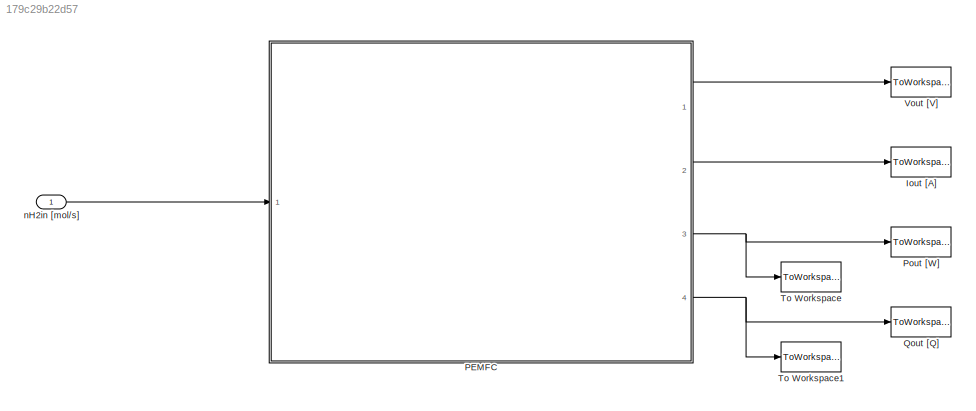
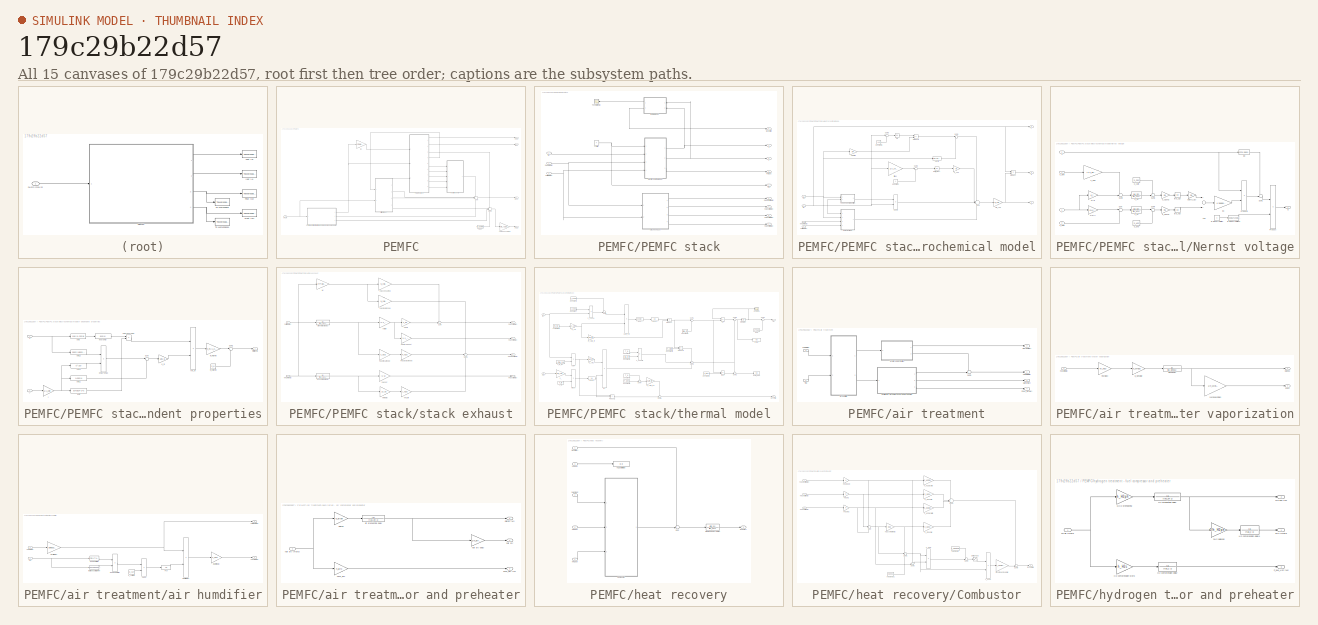
[diagram: thumbnail index - all 15 canvases of the model, root first then tree order]
MODEL slx_179c29b22d57
KIND model
CONFIG AbsTol = auto
CONFIG FixedStep = auto
CONFIG MaxStep = auto
CONFIG MinStep = 1e-6
CONFIG RelTol = 1e-3
CONFIG SampleTimeConstraint = Unconstrained
CONFIG Solver = VariableStepAuto
CONFIG SolverMode = Auto
CONFIG SolverName = VariableStepAuto
CONFIG StartTime = 0.0
CONFIG StopTime = tf
BLOCK [ToWorkspace] Iout [A]
  FixptAsFi = on
  MaxDataPoints = inf
  Ports = [1]
  SampleTime = -1
  Save2DSignal = 3-D array (concatenate along third dimension)
  SaveFormat = Timeseries
  VariableName = II
BLOCK [SubSystem] PEMFC
  Ports = [1, 4]
  RequestExecContextInheritance = off
  Variant = off
BLOCK [Gain] PEMFC/ACDC conversion
  Gain = eta_ACDC
  OutDataTypeStr = Inherit: Inherit via internal rule
  ParamDataTypeStr = Inherit: Inherit via internal rule
  SaturateOnIntegerOverflow = off
BLOCK [Gain] PEMFC/I [A]
  Gain = 2*F*U/N_cell
  OutDataTypeStr = Inherit: Inherit via internal rule
  ParamDataTypeStr = Inherit: Inherit via internal rule
  SaturateOnIntegerOverflow = off
BLOCK [Outport] PEMFC/Iout
  IconDisplay = Port number
  Port = 2
BLOCK [Constant] PEMFC/PBOP
  Value = P_gamma
BLOCK [SubSystem] PEMFC/PEMFC stack
  Ports = [3, 9]
  RequestExecContextInheritance = off
  Variant = off
BLOCK [Outport] PEMFC/PEMFC stack/I
  IconDisplay = Port number
  Port = 2
BLOCK [Inport] PEMFC/PEMFC stack/I [A]
  IconDisplay = Port number
BLOCK [Outport] PEMFC/PEMFC stack/Pstack
  IconDisplay = Port number
  Port = 3
BLOCK [Outport] PEMFC/PEMFC stack/Qcool [W]
  IconDisplay = Port number
  Port = 5
BLOCK [Outport] PEMFC/PEMFC stack/T [K]
  IconDisplay = Port number
  Port = 4
BLOCK [Scope] PEMFC/PEMFC stack/T evolution [K]
  Ports = [1]
  ScopeSpecificationString = Simulink.scopes.TimeScopeBlockCfg('CurrentConfiguration', extmgr.ConfigurationSet(extmgr.Configuration('Core','General UI',true),extmgr.Configuration('Core','Source UI',true),extmgr.Configuration('Sources','WiredSimulink',true,'DataLoggingVariableName','ScopeData1','DataLoggingLimitDataPoints',true,'DataLoggingSaveFormat','Array','DataLoggingDecimation','1','DataLoggingDecimateData',true),extmgr.C...<+1513ch>
BLOCK [Constant] PEMFC/PEMFC stack/Tcell [K]
  Value = T
BLOCK [Outport] PEMFC/PEMFC stack/V 
  IconDisplay = Port number
BLOCK [SubSystem] PEMFC/PEMFC stack/electrochemical model
  Ports = [4, 3]
  RequestExecContextInheritance = off
  Variant = off
BLOCK [Constant] PEMFC/PEMFC stack/electrochemical model/Constant
BLOCK [Constant] PEMFC/PEMFC stack/electrochemical model/Constant1
  Value = 1e-5
BLOCK [Outport] PEMFC/PEMFC stack/electrochemical model/I
  IconDisplay = Port number
  Port = 2
BLOCK [Inport] PEMFC/PEMFC stack/electrochemical model/I [A] 
  IconDisplay = Port number
  Port = 2
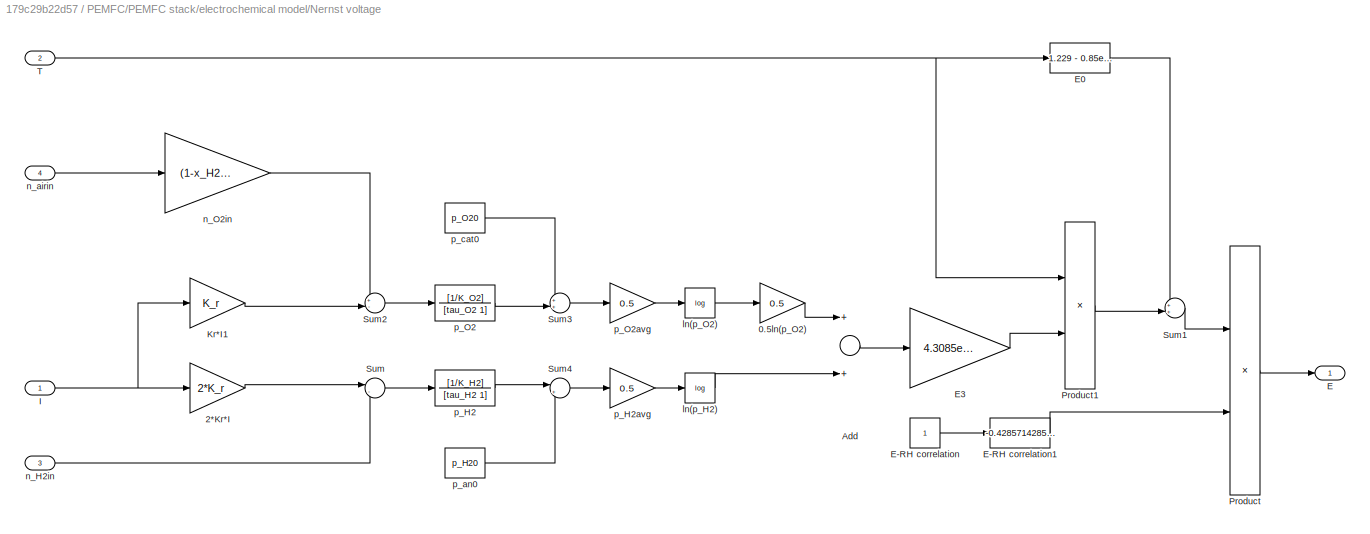
BLOCK [SubSystem] PEMFC/PEMFC stack/electrochemical model/Nernst voltage
  Ports = [4, 1]
  RequestExecContextInheritance = off
  Variant = off
BLOCK [Gain] PEMFC/PEMFC stack/electrochemical model/Nernst voltage/0.5ln(p_O2)
  Gain = 0.5
  OutDataTypeStr = Inherit: Inherit via internal rule
  ParamDataTypeStr = Inherit: Inherit via internal rule
  SaturateOnIntegerOverflow = off
BLOCK [Gain] PEMFC/PEMFC stack/electrochemical model/Nernst voltage/2*Kr*I
  Gain = 2*K_r
  OutDataTypeStr = Inherit: Inherit via internal rule
  ParamDataTypeStr = Inherit: Inherit via internal rule
  SaturateOnIntegerOverflow = off
BLOCK [Sum] PEMFC/PEMFC stack/electrochemical model/Nernst voltage/Add
  InputSameDT = off
  OutDataTypeStr = Inherit: Inherit via internal rule
  Ports = [2, 1]
  SaturateOnIntegerOverflow = off
BLOCK [Outport] PEMFC/PEMFC stack/electrochemical model/Nernst voltage/E
  IconDisplay = Port number
BLOCK [Constant] PEMFC/PEMFC stack/electrochemical model/Nernst voltage/E-RH correlation
BLOCK [Fcn] PEMFC/PEMFC stack/electrochemical model/Nernst voltage/E-RH correlation1
  Expr = -0.428571428571430*u^2 + 1.271428571428573 * u + 0.157142857142857
BLOCK [Fcn] PEMFC/PEMFC stack/electrochemical model/Nernst voltage/E0
  Expr = 1.229 - 0.85e-03 * (u - 298.15)
BLOCK [Gain] PEMFC/PEMFC stack/electrochemical model/Nernst voltage/E3
  Gain = 4.3085e-05
  OutDataTypeStr = Inherit: Inherit via internal rule
  ParamDataTypeStr = Inherit: Inherit via internal rule
  SaturateOnIntegerOverflow = off
BLOCK [Inport] PEMFC/PEMFC stack/electrochemical model/Nernst voltage/I
  IconDisplay = Port number
BLOCK [Gain] PEMFC/PEMFC stack/electrochemical model/Nernst voltage/Kr*I1
  Gain = K_r
  OutDataTypeStr = Inherit: Inherit via internal rule
  ParamDataTypeStr = Inherit: Inherit via internal rule
  SaturateOnIntegerOverflow = off
BLOCK [Product] PEMFC/PEMFC stack/electrochemical model/Nernst voltage/Product
  InputSameDT = off
  OutDataTypeStr = Inherit: Inherit via internal rule
  Ports = [2, 1]
  RndMeth = Floor
  SaturateOnIntegerOverflow = off
BLOCK [Product] PEMFC/PEMFC stack/electrochemical model/Nernst voltage/Product1
  InputSameDT = off
  OutDataTypeStr = Inherit: Inherit via internal rule
  Ports = [2, 1]
  RndMeth = Floor
  SaturateOnIntegerOverflow = off
BLOCK [Sum] PEMFC/PEMFC stack/electrochemical model/Nernst voltage/Sum
  IconShape = round
  InputSameDT = off
  Inputs = |-+
  OutDataTypeStr = Inherit: Inherit via internal rule
  Ports = [2, 1]
  SaturateOnIntegerOverflow = off
BLOCK [Sum] PEMFC/PEMFC stack/electrochemical model/Nernst voltage/Sum1
  IconShape = round
  InputSameDT = off
  Inputs = ++|
  OutDataTypeStr = Inherit: Inherit via internal rule
  Ports = [2, 1]
  SaturateOnIntegerOverflow = off
BLOCK [Sum] PEMFC/PEMFC stack/electrochemical model/Nernst voltage/Sum2
  IconShape = round
  InputSameDT = off
  Inputs = +-|
  OutDataTypeStr = Inherit: Inherit via internal rule
  Ports = [2, 1]
  SaturateOnIntegerOverflow = off
BLOCK [Sum] PEMFC/PEMFC stack/electrochemical model/Nernst voltage/Sum3
  IconShape = round
  InputSameDT = off
  Inputs = ++|
  OutDataTypeStr = Inherit: Inherit via internal rule
  Ports = [2, 1]
  SaturateOnIntegerOverflow = off
BLOCK [Sum] PEMFC/PEMFC stack/electrochemical model/Nernst voltage/Sum4
  IconShape = round
  InputSameDT = off
  Inputs = |++
  OutDataTypeStr = Inherit: Inherit via internal rule
  Ports = [2, 1]
  SaturateOnIntegerOverflow = off
BLOCK [Inport] PEMFC/PEMFC stack/electrochemical model/Nernst voltage/T
  IconDisplay = Port number
  Port = 2
BLOCK [Math] PEMFC/PEMFC stack/electrochemical model/Nernst voltage/ln(p_H2)
  Operator = log
  Ports = [1, 1]
BLOCK [Math] PEMFC/PEMFC stack/electrochemical model/Nernst voltage/ln(p_O2)
  Operator = log
  Ports = [1, 1]
BLOCK [Inport] PEMFC/PEMFC stack/electrochemical model/Nernst voltage/n_H2in
  IconDisplay = Port number
  Port = 3
BLOCK [Gain] PEMFC/PEMFC stack/electrochemical model/Nernst voltage/n_O2in
  Gain = (1-x_H2O)*0.21
  OutDataTypeStr = Inherit: Inherit via internal rule
  ParamDataTypeStr = Inherit: Inherit via internal rule
  SaturateOnIntegerOverflow = off
BLOCK [Inport] PEMFC/PEMFC stack/electrochemical model/Nernst voltage/n_airin
  IconDisplay = Port number
  Port = 4
BLOCK [TransferFcn] PEMFC/PEMFC stack/electrochemical model/Nernst voltage/p_H2
  ContinuousStateAttributes = 'p_H2'
  Denominator = [tau_H2 1]
  Numerator = [1/K_H2]
BLOCK [Gain] PEMFC/PEMFC stack/electrochemical model/Nernst voltage/p_H2avg
  Gain = 0.5
  OutDataTypeStr = Inherit: Inherit via internal rule
  ParamDataTypeStr = Inherit: Inherit via internal rule
  SaturateOnIntegerOverflow = off
BLOCK [TransferFcn] PEMFC/PEMFC stack/electrochemical model/Nernst voltage/p_O2
  ContinuousStateAttributes = 'p_O2'
  Denominator = [tau_O2 1]
  Numerator = [1/K_O2]
BLOCK [Gain] PEMFC/PEMFC stack/electrochemical model/Nernst voltage/p_O2avg
  Gain = 0.5
  OutDataTypeStr = Inherit: Inherit via internal rule
  ParamDataTypeStr = Inherit: Inherit via internal rule
  SaturateOnIntegerOverflow = off
BLOCK [Constant] PEMFC/PEMFC stack/electrochemical model/Nernst voltage/p_an0
  Value = p_H20
BLOCK [Constant] PEMFC/PEMFC stack/electrochemical model/Nernst voltage/p_cat0
  Value = p_O20
BLOCK [Outport] PEMFC/PEMFC stack/electrochemical model/P
  IconDisplay = Port number
  Port = 3
BLOCK [Product] PEMFC/PEMFC stack/electrochemical model/Product
  InputSameDT = off
  OutDataTypeStr = Inherit: Inherit via internal rule
  Ports = [2, 1]
  RndMeth = Floor
  SaturateOnIntegerOverflow = off
BLOCK [Product] PEMFC/PEMFC stack/electrochemical model/Product1
  InputSameDT = off
  OutDataTypeStr = Inherit: Inherit via internal rule
  Ports = [2, 1]
  RndMeth = Floor
  SaturateOnIntegerOverflow = off
BLOCK [Sum] PEMFC/PEMFC stack/electrochemical model/Sum
  IconShape = round
  InputSameDT = off
  Inputs = ---|+
  OutDataTypeStr = Inherit: Inherit via internal rule
  Ports = [4, 1]
  SaturateOnIntegerOverflow = off
BLOCK [Sum] PEMFC/PEMFC stack/electrochemical model/Sum1
  IconShape = round
  InputSameDT = off
  Inputs = |-+
  OutDataTypeStr = Inherit: Inherit via internal rule
  Ports = [2, 1]
  SaturateOnIntegerOverflow = off
BLOCK [Sum] PEMFC/PEMFC stack/electrochemical model/Sum2
  IconShape = round
  InputSameDT = off
  Inputs = |-+
  OutDataTypeStr = Inherit: Inherit via internal rule
  Ports = [2, 1]
  SaturateOnIntegerOverflow = off
BLOCK [Sum] PEMFC/PEMFC stack/electrochemical model/Sum3
  IconShape = round
  InputSameDT = off
  Inputs = |++
  OutDataTypeStr = Inherit: Inherit via internal rule
  Ports = [2, 1]
  SaturateOnIntegerOverflow = off
BLOCK [Inport] PEMFC/PEMFC stack/electrochemical model/T [K]
  IconDisplay = Port number
BLOCK [SubSystem] PEMFC/PEMFC stack/electrochemical model/T dependent properties
  Ports = [2, 1]
  RequestExecContextInheritance = off
  Variant = off
BLOCK [Inport] PEMFC/PEMFC stack/electrochemical model/T dependent properties/I
  IconDisplay = Port number
  Port = 2
BLOCK [Gain] PEMFC/PEMFC stack/electrochemical model/T dependent properties/K_m
  Gain = 181.6
  OutDataTypeStr = Inherit: Inherit via internal rule
  ParamDataTypeStr = Inherit: Inherit via internal rule
  SaturateOnIntegerOverflow = off
BLOCK [Constant] PEMFC/PEMFC stack/electrochemical model/T dependent properties/R_el [ohm]
  Value = R_el
BLOCK [Gain] PEMFC/PEMFC stack/electrochemical model/T dependent properties/R_m [ohm]
  Gain = z_m/A_cell
  OutDataTypeStr = Inherit: Inherit via internal rule
  ParamDataTypeStr = Inherit: Inherit via internal rule
  SaturateOnIntegerOverflow = off
BLOCK [Outport] PEMFC/PEMFC stack/electrochemical model/T dependent properties/Rtot [ohm]
  IconDisplay = Port number
BLOCK [Sum] PEMFC/PEMFC stack/electrochemical model/T dependent properties/Sum
  IconShape = round
  InputSameDT = off
  Inputs = |++
  OutDataTypeStr = Inherit: Inherit via internal rule
  Ports = [2, 1]
  SaturateOnIntegerOverflow = off
BLOCK [Sum] PEMFC/PEMFC stack/electrochemical model/T dependent properties/Sum1
  IconShape = round
  InputSameDT = off
  Inputs = |++
  OutDataTypeStr = Inherit: Inherit via internal rule
  Ports = [2, 1]
  SaturateOnIntegerOverflow = off
BLOCK [Inport] PEMFC/PEMFC stack/electrochemical model/T dependent properties/T
  IconDisplay = Port number
BLOCK [Fcn] PEMFC/PEMFC stack/electrochemical model/T dependent properties/exp(phi3)
  Expr = exp(u)
BLOCK [Gain] PEMFC/PEMFC stack/electrochemical model/T dependent properties/i
  Gain = 1/A_cell
  OutDataTypeStr = Inherit: Inherit via internal rule
  ParamDataTypeStr = Inherit: Inherit via internal rule
  SaturateOnIntegerOverflow = off
BLOCK [Fcn] PEMFC/PEMFC stack/electrochemical model/T dependent properties/phi11
  Expr = 1+0.03*u
BLOCK [Fcn] PEMFC/PEMFC stack/electrochemical model/T dependent properties/phi12
  Expr = 0.062*(u/303)^2
BLOCK [Product] PEMFC/PEMFC stack/electrochemical model/T dependent properties/phi12*phi13
  InputSameDT = off
  OutDataTypeStr = Inherit: Inherit via internal rule
  Ports = [2, 1]
  RndMeth = Floor
  SaturateOnIntegerOverflow = off
BLOCK [Fcn] PEMFC/PEMFC stack/electrochemical model/T dependent properties/phi13
  Expr = u^(2.5)
BLOCK [Fcn] PEMFC/PEMFC stack/electrochemical model/T dependent properties/phi2
  Expr = psi-0.634-3*u
BLOCK [Product] PEMFC/PEMFC stack/electrochemical model/T dependent properties/phi2*exp(phi3)
  InputSameDT = off
  OutDataTypeStr = Inherit: Inherit via internal rule
  Ports = [2, 1]
  RndMeth = Floor
  SaturateOnIntegerOverflow = off
BLOCK [Fcn] PEMFC/PEMFC stack/electrochemical model/T dependent properties/phi3
  Expr = 4.18*(u-303)/u
BLOCK [Product] PEMFC/PEMFC stack/electrochemical model/T dependent properties/rho_m
  InputSameDT = off
  Inputs = /*
  OutDataTypeStr = Inherit: Inherit via internal rule
  Ports = [2, 1]
  RndMeth = Floor
  SaturateOnIntegerOverflow = off
BLOCK [Outport] PEMFC/PEMFC stack/electrochemical model/V
  IconDisplay = Port number
BLOCK [Gain] PEMFC/PEMFC stack/electrochemical model/V_con
  Gain = -B
  OutDataTypeStr = Inherit: Inherit via internal rule
  ParamDataTypeStr = Inherit: Inherit via internal rule
  SaturateOnIntegerOverflow = off
BLOCK [Fcn] PEMFC/PEMFC stack/electrochemical model/Vact0
  Expr = - (xi1 + xi2 * u + xi3 * u * log(c_O2))
BLOCK [Product] PEMFC/PEMFC stack/electrochemical model/Vohm
  InputSameDT = off
  OutDataTypeStr = Inherit: Inherit via internal rule
  Ports = [2, 1]
  RndMeth = Floor
  SaturateOnIntegerOverflow = off
BLOCK [Gain] PEMFC/PEMFC stack/electrochemical model/i//imax
  Gain = 1/(A_cell*i_max)
  OutDataTypeStr = Inherit: Inherit via internal rule
  ParamDataTypeStr = Inherit: Inherit via internal rule
  SaturateOnIntegerOverflow = off
BLOCK [Math] PEMFC/PEMFC stack/electrochemical model/ln(1-i//i_max)
  Operator = log
  Ports = [1, 1]
BLOCK [Math] PEMFC/PEMFC stack/electrochemical model/ln(I) 
  Operator = log
  Ports = [1, 1]
BLOCK [Inport] PEMFC/PEMFC stack/electrochemical model/nH2in [mol//s]
  IconDisplay = Port number
  Port = 3
BLOCK [Inport] PEMFC/PEMFC stack/electrochemical model/nairin [mol//s]
  IconDisplay = Port number
  Port = 4
BLOCK [Gain] PEMFC/PEMFC stack/electrochemical model/v*N_cell
  Gain = N_cell
  OutDataTypeStr = Inherit: Inherit via internal rule
  ParamDataTypeStr = Inherit: Inherit via internal rule
  SaturateOnIntegerOverflow = off
BLOCK [Gain] PEMFC/PEMFC stack/electrochemical model/xi4*T*ln(I)
  Gain = xi4
  OutDataTypeStr = Inherit: Inherit via internal rule
  ParamDataTypeStr = Inherit: Inherit via internal rule
  SaturateOnIntegerOverflow = off
BLOCK [Outport] PEMFC/PEMFC stack/nH2Oout [mol//s]
  IconDisplay = Port number
  Port = 6
BLOCK [Inport] PEMFC/PEMFC stack/nH2in [mol//s]
  IconDisplay = Port number
  Port = 2
BLOCK [Outport] PEMFC/PEMFC stack/nH2out [mol//s]
  IconDisplay = Port number
  Port = 9
BLOCK [Outport] PEMFC/PEMFC stack/nN2out [mol//s]
  IconDisplay = Port number
  Port = 8
BLOCK [Outport] PEMFC/PEMFC stack/nO2out [mol//s]
  IconDisplay = Port number
  Port = 7
BLOCK [Inport] PEMFC/PEMFC stack/nairin [mol//s]
  IconDisplay = Port number
  Port = 3
BLOCK [SubSystem] PEMFC/PEMFC stack/stack exhaust
  Ports = [2, 4]
  RequestExecContextInheritance = off
  Variant = off
BLOCK [TransferFcn] PEMFC/PEMFC stack/stack exhaust/H2 overall cell delay
  ContinuousStateAttributes = 'p_O2'
  Denominator = [tau_H2 1]
BLOCK [Gain] PEMFC/PEMFC stack/stack exhaust/I [A]
  Gain = 2*F*U/N_cell
  OutDataTypeStr = Inherit: Inherit via internal rule
  ParamDataTypeStr = Inherit: Inherit via internal rule
  SaturateOnIntegerOverflow = off
BLOCK [Sum] PEMFC/PEMFC stack/stack exhaust/Sum
  IconShape = round
  InputSameDT = off
  Inputs = -+|
  OutDataTypeStr = Inherit: Inherit via internal rule
  Ports = [2, 1]
  SaturateOnIntegerOverflow = off
BLOCK [Sum] PEMFC/PEMFC stack/stack exhaust/Sum1
  IconShape = round
  InputSameDT = off
  Inputs = +++
  OutDataTypeStr = Inherit: Inherit via internal rule
  Ports = [3, 1]
  SaturateOnIntegerOverflow = off
BLOCK [TransferFcn] PEMFC/PEMFC stack/stack exhaust/air overall cell delay
  ContinuousStateAttributes = 'p_O2'
  Denominator = [tau_O2 1]
BLOCK [Gain] PEMFC/PEMFC stack/stack exhaust/nH2Oin
  Gain = y_H2O
  OutDataTypeStr = Inherit: Inherit via internal rule
  ParamDataTypeStr = Inherit: Inherit via internal rule
  SaturateOnIntegerOverflow = off
BLOCK [Gain] PEMFC/PEMFC stack/stack exhaust/nH2Oin cathode
  Gain = x_H2O
  OutDataTypeStr = Inherit: Inherit via internal rule
  ParamDataTypeStr = Inherit: Inherit via internal rule
  SaturateOnIntegerOverflow = off
BLOCK [Outport] PEMFC/PEMFC stack/stack exhaust/nH2Oout [mol//s]
  IconDisplay = Port number
BLOCK [Gain] PEMFC/PEMFC stack/stack exhaust/nH2Oout anode
  Gain = N_cell/(2*F)
  OutDataTypeStr = Inherit: Inherit via internal rule
  ParamDataTypeStr = Inherit: Inherit via internal rule
  SaturateOnIntegerOverflow = off
BLOCK [Gain] PEMFC/PEMFC stack/stack exhaust/nH2Oout cathode
  Gain = F_H2O
  OutDataTypeStr = Inherit: Inherit via internal rule
  ParamDataTypeStr = Inherit: Inherit via internal rule
  SaturateOnIntegerOverflow = off
BLOCK [Inport] PEMFC/PEMFC stack/stack exhaust/nH2in [mol//s]
  IconDisplay = Port number
BLOCK [Gain] PEMFC/PEMFC stack/stack exhaust/nH2out
  Gain = (1 - U)
  OutDataTypeStr = Inherit: Inherit via internal rule
  ParamDataTypeStr = Inherit: Inherit via internal rule
  SaturateOnIntegerOverflow = off
BLOCK [Outport] PEMFC/PEMFC stack/stack exhaust/nH2out [mol//s]
  IconDisplay = Port number
  Port = 4
BLOCK [Gain] PEMFC/PEMFC stack/stack exhaust/nN2in = nN2out
  Gain = (1 - x_O2)
  OutDataTypeStr = Inherit: Inherit via internal rule
  ParamDataTypeStr = Inherit: Inherit via internal rule
  SaturateOnIntegerOverflow = off
BLOCK [Outport] PEMFC/PEMFC stack/stack exhaust/nN2out [mol//s]
  IconDisplay = Port number
  Port = 3
BLOCK [Gain] PEMFC/PEMFC stack/stack exhaust/nO2 consumed
  Gain = N_cell/(4*F)
  OutDataTypeStr = Inherit: Inherit via internal rule
  ParamDataTypeStr = Inherit: Inherit via internal rule
  SaturateOnIntegerOverflow = off
BLOCK [Gain] PEMFC/PEMFC stack/stack exhaust/nO2in
  Gain = x_O2
  OutDataTypeStr = Inherit: Inherit via internal rule
  ParamDataTypeStr = Inherit: Inherit via internal rule
  SaturateOnIntegerOverflow = off
BLOCK [Outport] PEMFC/PEMFC stack/stack exhaust/nO2out [mol//s]
  IconDisplay = Port number
  Port = 2
BLOCK [Gain] PEMFC/PEMFC stack/stack exhaust/nair dry
  Gain = (1 - x_H2O)
  OutDataTypeStr = Inherit: Inherit via internal rule
  ParamDataTypeStr = Inherit: Inherit via internal rule
  SaturateOnIntegerOverflow = off
BLOCK [Inport] PEMFC/PEMFC stack/stack exhaust/nairin [mol//s]
  IconDisplay = Port number
  Port = 2
BLOCK [Gain] PEMFC/PEMFC stack/stack exhaust/nin  [mol//s] 
  Gain = 1/y_H2
  OutDataTypeStr = Inherit: Inherit via internal rule
  ParamDataTypeStr = Inherit: Inherit via internal rule
  SaturateOnIntegerOverflow = off
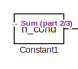
[diagram: PEMFC/PEMFC stack/thermal model - part 1/3, top left region]
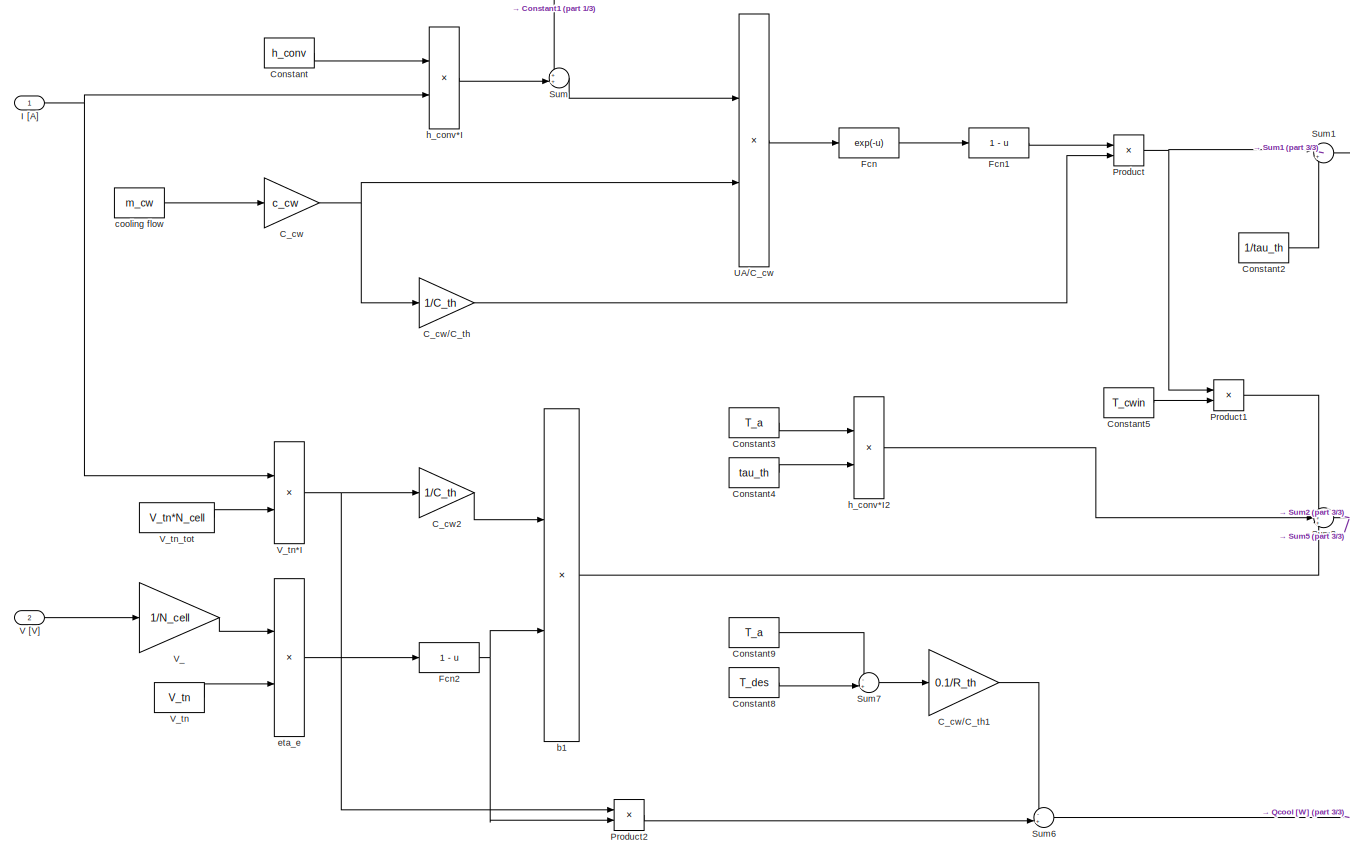
[diagram: PEMFC/PEMFC stack/thermal model - part 2/3, left side, full height]
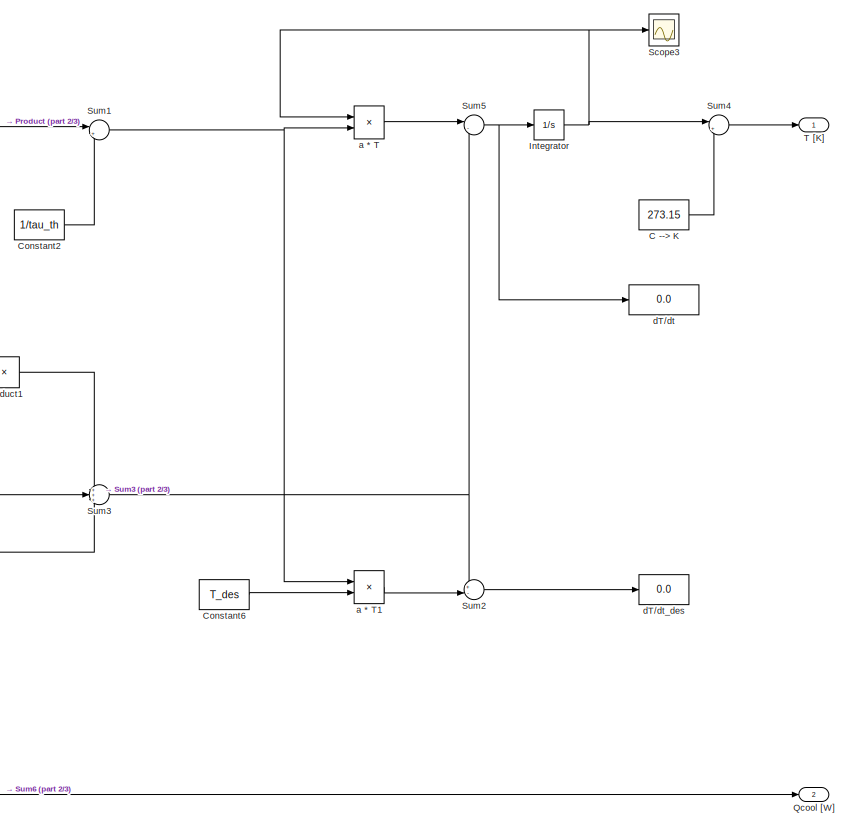
[diagram: PEMFC/PEMFC stack/thermal model - part 3/3, right side, full height]
BLOCK [SubSystem] PEMFC/PEMFC stack/thermal model
  Ports = [2, 2]
  RequestExecContextInheritance = off
  Variant = off
BLOCK [Constant] PEMFC/PEMFC stack/thermal model/C --> K
  Value = 273.15
BLOCK [Gain] PEMFC/PEMFC stack/thermal model/C_cw
  Gain = c_cw
  OutDataTypeStr = Inherit: Inherit via internal rule
  ParamDataTypeStr = Inherit: Inherit via internal rule
  SaturateOnIntegerOverflow = off
BLOCK [Gain] PEMFC/PEMFC stack/thermal model/C_cw//C_th
  Gain = 1/C_th
  OutDataTypeStr = Inherit: Inherit via internal rule
  ParamDataTypeStr = Inherit: Inherit via internal rule
  SaturateOnIntegerOverflow = off
BLOCK [Gain] PEMFC/PEMFC stack/thermal model/C_cw//C_th1
  Gain = 0.1/R_th
  OutDataTypeStr = Inherit: Inherit via internal rule
  ParamDataTypeStr = Inherit: Inherit via internal rule
  SaturateOnIntegerOverflow = off
BLOCK [Gain] PEMFC/PEMFC stack/thermal model/C_cw2
  Gain = 1/C_th
  OutDataTypeStr = Inherit: Inherit via internal rule
  ParamDataTypeStr = Inherit: Inherit via internal rule
  SaturateOnIntegerOverflow = off
BLOCK [Constant] PEMFC/PEMFC stack/thermal model/Constant
  Value = h_conv
BLOCK [Constant] PEMFC/PEMFC stack/thermal model/Constant1
  Value = h_cond
BLOCK [Constant] PEMFC/PEMFC stack/thermal model/Constant2
  Value = 1/tau_th
BLOCK [Constant] PEMFC/PEMFC stack/thermal model/Constant3
  Value = T_a
BLOCK [Constant] PEMFC/PEMFC stack/thermal model/Constant4
  Value = tau_th
BLOCK [Constant] PEMFC/PEMFC stack/thermal model/Constant5
  Value = T_cwin
BLOCK [Constant] PEMFC/PEMFC stack/thermal model/Constant6
  Value = T_des
BLOCK [Constant] PEMFC/PEMFC stack/thermal model/Constant8
  Value = T_des
BLOCK [Constant] PEMFC/PEMFC stack/thermal model/Constant9
  Value = T_a
BLOCK [Fcn] PEMFC/PEMFC stack/thermal model/Fcn
  Expr = exp(-u)
BLOCK [Fcn] PEMFC/PEMFC stack/thermal model/Fcn1
  Expr = 1 - u
BLOCK [Fcn] PEMFC/PEMFC stack/thermal model/Fcn2
  Expr = 1 - u
BLOCK [Inport] PEMFC/PEMFC stack/thermal model/I [A]
  IconDisplay = Port number
BLOCK [Integrator] PEMFC/PEMFC stack/thermal model/Integrator
  AbsoluteTolerance = 1e-6
  InitialCondition = T0
  Ports = [1, 1]
BLOCK [Product] PEMFC/PEMFC stack/thermal model/Product
  InputSameDT = off
  OutDataTypeStr = Inherit: Inherit via internal rule
  Ports = [2, 1]
  RndMeth = Floor
  SaturateOnIntegerOverflow = off
BLOCK [Product] PEMFC/PEMFC stack/thermal model/Product1
  InputSameDT = off
  OutDataTypeStr = Inherit: Inherit via internal rule
  Ports = [2, 1]
  RndMeth = Floor
  SaturateOnIntegerOverflow = off
BLOCK [Product] PEMFC/PEMFC stack/thermal model/Product2
  InputSameDT = off
  OutDataTypeStr = Inherit: Inherit via internal rule
  Ports = [2, 1]
  RndMeth = Floor
  SaturateOnIntegerOverflow = off
BLOCK [Outport] PEMFC/PEMFC stack/thermal model/Qcool [W]
  IconDisplay = Port number
  Port = 2
BLOCK [Scope] PEMFC/PEMFC stack/thermal model/Scope3
  Ports = [1]
  ScopeSpecificationString = Simulink.scopes.TimeScopeBlockCfg('CurrentConfiguration', extmgr.ConfigurationSet(extmgr.Configuration('Core','General UI',true),extmgr.Configuration('Core','Source UI',true),extmgr.Configuration('Sources','WiredSimulink',true,'DataLoggingVariableName','ScopeData1'),extmgr.Configuration('Visuals','Time Domain',true,'SerializedDisplays',{struct('MinYLimReal','16.0966','MaxYLimReal','56.62462','YLab...<+1423ch>
BLOCK [Sum] PEMFC/PEMFC stack/thermal model/Sum
  IconShape = round
  InputSameDT = off
  Inputs = ++|
  OutDataTypeStr = Inherit: Inherit via internal rule
  Ports = [2, 1]
  SaturateOnIntegerOverflow = off
BLOCK [Sum] PEMFC/PEMFC stack/thermal model/Sum1
  IconShape = round
  InputSameDT = off
  Inputs = |++
  OutDataTypeStr = Inherit: Inherit via internal rule
  Ports = [2, 1]
  SaturateOnIntegerOverflow = off
BLOCK [Sum] PEMFC/PEMFC stack/thermal model/Sum2
  IconShape = round
  InputSameDT = off
  Inputs = +-|
  OutDataTypeStr = Inherit: Inherit via internal rule
  Ports = [2, 1]
  SaturateOnIntegerOverflow = off
BLOCK [Sum] PEMFC/PEMFC stack/thermal model/Sum3
  IconShape = round
  InputSameDT = off
  Inputs = +++
  OutDataTypeStr = Inherit: Inherit via internal rule
  Ports = [3, 1]
  SaturateOnIntegerOverflow = off
BLOCK [Sum] PEMFC/PEMFC stack/thermal model/Sum4
  IconShape = round
  InputSameDT = off
  Inputs = |++
  OutDataTypeStr = Inherit: Inherit via internal rule
  Ports = [2, 1]
  SaturateOnIntegerOverflow = off
BLOCK [Sum] PEMFC/PEMFC stack/thermal model/Sum5
  IconShape = round
  InputSameDT = off
  Inputs = |-+
  OutDataTypeStr = Inherit: Inherit via internal rule
  Ports = [2, 1]
  SaturateOnIntegerOverflow = off
BLOCK [Sum] PEMFC/PEMFC stack/thermal model/Sum6
  IconShape = round
  InputSameDT = off
  Inputs = -+|
  OutDataTypeStr = Inherit: Inherit via internal rule
  Ports = [2, 1]
  SaturateOnIntegerOverflow = off
BLOCK [Sum] PEMFC/PEMFC stack/thermal model/Sum7
  IconShape = round
  InputSameDT = off
  Inputs = -+|
  OutDataTypeStr = Inherit: Inherit via internal rule
  Ports = [2, 1]
  SaturateOnIntegerOverflow = off
BLOCK [Outport] PEMFC/PEMFC stack/thermal model/T [K]
  IconDisplay = Port number
BLOCK [Product] PEMFC/PEMFC stack/thermal model/UA//C_cw
  InputSameDT = off
  Inputs = */
  OutDataTypeStr = Inherit: Inherit via internal rule
  Ports = [2, 1]
  RndMeth = Floor
  SaturateOnIntegerOverflow = off
BLOCK [Inport] PEMFC/PEMFC stack/thermal model/V [V]
  IconDisplay = Port number
  Port = 2
BLOCK [Gain] PEMFC/PEMFC stack/thermal model/V_
  Gain = 1/N_cell
  OutDataTypeStr = Inherit: Inherit via internal rule
  ParamDataTypeStr = Inherit: Inherit via internal rule
  SaturateOnIntegerOverflow = off
BLOCK [Constant] PEMFC/PEMFC stack/thermal model/V_tn
  Value = V_tn
BLOCK [Product] PEMFC/PEMFC stack/thermal model/V_tn*I
  InputSameDT = off
  OutDataTypeStr = Inherit: Inherit via internal rule
  Ports = [2, 1]
  RndMeth = Floor
  SaturateOnIntegerOverflow = off
BLOCK [Constant] PEMFC/PEMFC stack/thermal model/V_tn_tot
  Value = V_tn*N_cell
BLOCK [Product] PEMFC/PEMFC stack/thermal model/a * T
  InputSameDT = off
  OutDataTypeStr = Inherit: Inherit via internal rule
  Ports = [2, 1]
  RndMeth = Floor
  SaturateOnIntegerOverflow = off
BLOCK [Product] PEMFC/PEMFC stack/thermal model/a * T1
  InputSameDT = off
  OutDataTypeStr = Inherit: Inherit via internal rule
  Ports = [2, 1]
  RndMeth = Floor
  SaturateOnIntegerOverflow = off
BLOCK [Product] PEMFC/PEMFC stack/thermal model/b1
  InputSameDT = off
  OutDataTypeStr = Inherit: Inherit via internal rule
  Ports = [2, 1]
  RndMeth = Floor
  SaturateOnIntegerOverflow = off
BLOCK [Constant] PEMFC/PEMFC stack/thermal model/cooling flow
  Value = m_cw
BLOCK [Display] PEMFC/PEMFC stack/thermal model/dT//dt
  Decimation = 1
  Ports = [1]
BLOCK [Display] PEMFC/PEMFC stack/thermal model/dT//dt_des
  Decimation = 1
  Ports = [1]
BLOCK [Product] PEMFC/PEMFC stack/thermal model/eta_e
  InputSameDT = off
  Inputs = */
  OutDataTypeStr = Inherit: Inherit via internal rule
  Ports = [2, 1]
  RndMeth = Floor
  SaturateOnIntegerOverflow = off
BLOCK [Product] PEMFC/PEMFC stack/thermal model/h_conv*I
  InputSameDT = off
  OutDataTypeStr = Inherit: Inherit via internal rule
  Ports = [2, 1]
  RndMeth = Floor
  SaturateOnIntegerOverflow = off
BLOCK [Product] PEMFC/PEMFC stack/thermal model/h_conv*I2
  InputSameDT = off
  Inputs = */
  OutDataTypeStr = Inherit: Inherit via internal rule
  Ports = [2, 1]
  RndMeth = Floor
  SaturateOnIntegerOverflow = off
BLOCK [Outport] PEMFC/Pout
  IconDisplay = Port number
  Port = 3
BLOCK [Outport] PEMFC/Qout
  IconDisplay = Port number
  Port = 4
BLOCK [Sum] PEMFC/Sum
  IconShape = round
  InputSameDT = off
  Inputs = +---
  OutDataTypeStr = Inherit: Inherit via internal rule
  Ports = [4, 1]
  SaturateOnIntegerOverflow = off
BLOCK [Sum] PEMFC/Sum1
  IconShape = round
  InputSameDT = off
  Inputs = +---
  OutDataTypeStr = Inherit: Inherit via internal rule
  Ports = [4, 1]
  SaturateOnIntegerOverflow = off
BLOCK [Outport] PEMFC/Vout
  IconDisplay = Port number
BLOCK [SubSystem] PEMFC/air treatment
  Ports = [2, 4]
  RequestExecContextInheritance = off
  Variant = off
BLOCK [Outport] PEMFC/air treatment/Paux_airc [W]
  IconDisplay = Port number
  Port = 4
BLOCK [Outport] PEMFC/air treatment/QWHSG [W]
  IconDisplay = Port number
  Port = 2
BLOCK [Outport] PEMFC/air treatment/Qairph [W]
  IconDisplay = Port number
  Port = 3
BLOCK [Sum] PEMFC/air treatment/Sum1
  IconShape = round
  InputSameDT = off
  Inputs = ++|
  OutDataTypeStr = Inherit: Inherit via internal rule
  Ports = [2, 1]
  SaturateOnIntegerOverflow = off
BLOCK [Inport] PEMFC/air treatment/T [K]
  IconDisplay = Port number
BLOCK [SubSystem] PEMFC/air treatment/Water vaporization
  Ports = [1, 2]
  RequestExecContextInheritance = off
  Variant = off
BLOCK [Outport] PEMFC/air treatment/Water vaporization/QWHSG
  IconDisplay = Port number
BLOCK [Gain] PEMFC/air treatment/Water vaporization/Q_WHSG [W]
  Gain = h_WHSG
  OutDataTypeStr = Inherit: Inherit via internal rule
  ParamDataTypeStr = Inherit: Inherit via internal rule
  SaturateOnIntegerOverflow = off
BLOCK [TransferFcn] PEMFC/air treatment/Water vaporization/WHSG delay
  Denominator = [tau_WHSG 1]
BLOCK [Gain] PEMFC/air treatment/Water vaporization/mH2O [g//s]
  Gain = M_H2O
  OutDataTypeStr = Inherit: Inherit via internal rule
  ParamDataTypeStr = Inherit: Inherit via internal rule
  SaturateOnIntegerOverflow = off
BLOCK [Outport] PEMFC/air treatment/Water vaporization/nH2O
  IconDisplay = Port number
  Port = 2
BLOCK [Inport] PEMFC/air treatment/Water vaporization/nH2O [mol//s]
  IconDisplay = Port number
BLOCK [Gain] PEMFC/air treatment/Water vaporization/nH2Odelay [mol//s]
  Gain = 1/h_WHSG/M_H2O
  OutDataTypeStr = Inherit: Inherit via internal rule
  ParamDataTypeStr = Inherit: Inherit via internal rule
  SaturateOnIntegerOverflow = off
BLOCK [SubSystem] PEMFC/air treatment/air humdifier
  Ports = [2, 2]
  RequestExecContextInheritance = off
  Variant = off
BLOCK [Fcn] PEMFC/air treatment/air humdifier/Fcn
  Expr = 1- u
BLOCK [Inport] PEMFC/air treatment/air humdifier/T [K]
  IconDisplay = Port number
  Port = 2
BLOCK [Gain] PEMFC/air treatment/air humdifier/dry air [mol//s]
  Gain = lambda/x_O2
  OutDataTypeStr = Inherit: Inherit via internal rule
  ParamDataTypeStr = Inherit: Inherit via internal rule
  SaturateOnIntegerOverflow = off
BLOCK [Inport] PEMFC/air treatment/air humdifier/nH2 [mol//s]
  IconDisplay = Port number
BLOCK [Outport] PEMFC/air treatment/air humdifier/nH2O [mol//s]
  IconDisplay = Port number
BLOCK [Outport] PEMFC/air treatment/air humdifier/nair dry [mol//s]
  IconDisplay = Port number
  Port = 2
BLOCK [Fcn] PEMFC/air treatment/air humdifier/pH2O sat [atm]
  Expr = (chi1 * u^4 + chi2 * u^3 + chi3 * u^2 + chi4 * u + chi5) / 101325
BLOCK [Product] PEMFC/air treatment/air humdifier/pH2Ovap [atm]
  InputSameDT = off
  OutDataTypeStr = Inherit: Inherit via internal rule
  Ports = [2, 1]
  RndMeth = Floor
  SaturateOnIntegerOverflow = off
BLOCK [Constant] PEMFC/air treatment/air humdifier/p_cat [atm]
  Value = p_cat
BLOCK [Fcn] PEMFC/air treatment/air humdifier/relative humidity (RH)
  Expr = -0.000108333333333*u^2 + 0.067816666666668*u -9.569975000000186
BLOCK [Gain] PEMFC/air treatment/air humdifier/water [mol//s]
  Gain = x_H2O
  OutDataTypeStr = Inherit: Inherit via internal rule
  ParamDataTypeStr = Inherit: Inherit via internal rule
  SaturateOnIntegerOverflow = off
BLOCK [Product] PEMFC/air treatment/air humdifier/wet air [mol//s]
  InputSameDT = off
  Inputs = */
  OutDataTypeStr = Inherit: Inherit via internal rule
  Ports = [2, 1]
  RndMeth = Floor
  SaturateOnIntegerOverflow = off
BLOCK [Product] PEMFC/air treatment/air humdifier/xH2O
  InputSameDT = off
  Inputs = */
  OutDataTypeStr = Inherit: Inherit via internal rule
  Ports = [2, 1]
  RndMeth = Floor
  SaturateOnIntegerOverflow = off
BLOCK [SubSystem] PEMFC/air treatment/auxiliaries - air compressor and preheater
  Ports = [1, 3]
  RequestExecContextInheritance = off
  Variant = off
BLOCK [Gain] PEMFC/air treatment/auxiliaries - air compressor and preheater/Paux_airc
  Gain = h_airc
  OutDataTypeStr = Inherit: Inherit via internal rule
  ParamDataTypeStr = Inherit: Inherit via internal rule
  SaturateOnIntegerOverflow = off
BLOCK [Outport] PEMFC/air treatment/auxiliaries - air compressor and preheater/Paux_airc [W]
  IconDisplay = Port number
  Port = 3
BLOCK [Gain] PEMFC/air treatment/auxiliaries - air compressor and preheater/Qairph
  Gain = h_airph
  OutDataTypeStr = Inherit: Inherit via internal rule
  ParamDataTypeStr = Inherit: Inherit via internal rule
  SaturateOnIntegerOverflow = off
BLOCK [Outport] PEMFC/air treatment/auxiliaries - air compressor and preheater/Qairph [W]
  IconDisplay = Port number
  Port = 2
BLOCK [TransferFcn] PEMFC/air treatment/auxiliaries - air compressor and preheater/air preheating delay
  Denominator = [tau_ph 1]
BLOCK [Outport] PEMFC/air treatment/auxiliaries - air compressor and preheater/nair dry
  IconDisplay = Port number
BLOCK [Inport] PEMFC/air treatment/auxiliaries - air compressor and preheater/nair dry [mol//s]
  IconDisplay = Port number
BLOCK [Gain] PEMFC/air treatment/auxiliaries - air compressor and preheater/nair dry delay
  Gain = 1/h_airph
  OutDataTypeStr = Inherit: Inherit via internal rule
  ParamDataTypeStr = Inherit: Inherit via internal rule
  SaturateOnIntegerOverflow = off
BLOCK [Inport] PEMFC/air treatment/nH2 [mol//s]
  IconDisplay = Port number
  Port = 2
BLOCK [Outport] PEMFC/air treatment/nairin [mol//s]
  IconDisplay = Port number
BLOCK [SubSystem] PEMFC/heat recovery
  Ports = [5, 1]
  RequestExecContextInheritance = off
  Variant = off
BLOCK [SubSystem] PEMFC/heat recovery/Combustor
  Ports = [3, 1]
  RequestExecContextInheritance = off
  Variant = off
BLOCK [Saturate] PEMFC/heat recovery/Combustor/Delta xH2O
  InputPortMap = u0
  LowerLimit = 0
  Ports = [1, 1]
  UpperLimit = 1
BLOCK [Gain] PEMFC/heat recovery/Combustor/Qcomb H2Ovap [W]
  Gain = h_H2Opcvap
  OutDataTypeStr = Inherit: Inherit via internal rule
  ParamDataTypeStr = Inherit: Inherit via internal rule
  SaturateOnIntegerOverflow = off
BLOCK [Outport] PEMFC/heat recovery/Combustor/Qcomb [W]
  IconDisplay = Port number
BLOCK [Sum] PEMFC/heat recovery/Combustor/Sum
  IconShape = round
  InputSameDT = off
  Inputs = +++
  OutDataTypeStr = Inherit: Inherit via internal rule
  Ports = [3, 1]
  SaturateOnIntegerOverflow = off
BLOCK [Sum] PEMFC/heat recovery/Combustor/Sum1
  IconShape = round
  InputSameDT = off
  Inputs = +++
  OutDataTypeStr = Inherit: Inherit via internal rule
  Ports = [3, 1]
  SaturateOnIntegerOverflow = off
BLOCK [Sum] PEMFC/heat recovery/Combustor/Sum2
  IconShape = round
  InputSameDT = off
  Inputs = ++++
  OutDataTypeStr = Inherit: Inherit via internal rule
  Ports = [4, 1]
  SaturateOnIntegerOverflow = off
BLOCK [Sum] PEMFC/heat recovery/Combustor/Sum3
  IconShape = round
  InputSameDT = off
  Inputs = ++|
  OutDataTypeStr = Inherit: Inherit via internal rule
  Ports = [2, 1]
  SaturateOnIntegerOverflow = off
BLOCK [Sum] PEMFC/heat recovery/Combustor/Sum4
  IconShape = round
  InputSameDT = off
  Inputs = -+|
  OutDataTypeStr = Inherit: Inherit via internal rule
  Ports = [2, 1]
  SaturateOnIntegerOverflow = off
BLOCK [Sum] PEMFC/heat recovery/Combustor/Sum5
  IconShape = round
  InputSameDT = off
  Inputs = ++|
  OutDataTypeStr = Inherit: Inherit via internal rule
  Ports = [2, 1]
  SaturateOnIntegerOverflow = off
BLOCK [Gain] PEMFC/heat recovery/Combustor/h_H2Opc [W]
  Gain = h_H2Opc
  OutDataTypeStr = Inherit: Inherit via internal rule
  ParamDataTypeStr = Inherit: Inherit via internal rule
  SaturateOnIntegerOverflow = off
BLOCK [Gain] PEMFC/heat recovery/Combustor/h_H2Opc [W]2
  Gain = h_H2Opc
  OutDataTypeStr = Inherit: Inherit via internal rule
  ParamDataTypeStr = Inherit: Inherit via internal rule
  SaturateOnIntegerOverflow = off
BLOCK [Gain] PEMFC/heat recovery/Combustor/h_N2pc [W]
  Gain = h_N2pc
  OutDataTypeStr = Inherit: Inherit via internal rule
  ParamDataTypeStr = Inherit: Inherit via internal rule
  SaturateOnIntegerOverflow = off
BLOCK [Gain] PEMFC/heat recovery/Combustor/h_O2pc [W]
  Gain = h_O2pc
  OutDataTypeStr = Inherit: Inherit via internal rule
  ParamDataTypeStr = Inherit: Inherit via internal rule
  SaturateOnIntegerOverflow = off
BLOCK [Gain] PEMFC/heat recovery/Combustor/nH2O H2
  OutDataTypeStr = Inherit: Inherit via internal rule
  ParamDataTypeStr = Inherit: Inherit via internal rule
  SaturateOnIntegerOverflow = off
BLOCK [Gain] PEMFC/heat recovery/Combustor/nH2O H2O
  OutDataTypeStr = Inherit: Inherit via internal rule
  ParamDataTypeStr = Inherit: Inherit via internal rule
  SaturateOnIntegerOverflow = off
BLOCK [Inport] PEMFC/heat recovery/Combustor/nH2Oout [mol//s]
  IconDisplay = Port number
BLOCK [Inport] PEMFC/heat recovery/Combustor/nH2out [mol//s]
  IconDisplay = Port number
  Port = 3
BLOCK [Gain] PEMFC/heat recovery/Combustor/nN2 N2
  OutDataTypeStr = Inherit: Inherit via internal rule
  ParamDataTypeStr = Inherit: Inherit via internal rule
  SaturateOnIntegerOverflow = off
BLOCK [Inport] PEMFC/heat recovery/Combustor/nN2out [mol//s]
  IconDisplay = Port number
  Port = 2
BLOCK [Gain] PEMFC/heat recovery/Combustor/nO2 comb [mol//s]
  Gain = 0.03
  OutDataTypeStr = Inherit: Inherit via internal rule
  ParamDataTypeStr = Inherit: Inherit via internal rule
  SaturateOnIntegerOverflow = off
BLOCK [Constant] PEMFC/heat recovery/Combustor/xH2O vap
  Value = x_H2Ovap
BLOCK [Constant] PEMFC/heat recovery/Combustor/xH2O vap1
  Value = 0.0001
BLOCK [Product] PEMFC/heat recovery/Combustor/x_H2O
  InputSameDT = off
  Inputs = /*
  OutDataTypeStr = Inherit: Inherit via internal rule
  Ports = [2, 1]
  RndMeth = Floor
  SaturateOnIntegerOverflow = off
BLOCK [Product] PEMFC/heat recovery/Combustor/x_H2O1
  InputSameDT = off
  Inputs = **
  OutDataTypeStr = Inherit: Inherit via internal rule
  Ports = [2, 1]
  RndMeth = Floor
  SaturateOnIntegerOverflow = off
BLOCK [TransferFcn] PEMFC/heat recovery/Heat recovery delay
  Denominator = [tau_hx 1]
  Numerator = [eta_hx]
BLOCK [Inport] PEMFC/heat recovery/Qcool [W]
  IconDisplay = Port number
BLOCK [Outport] PEMFC/heat recovery/Qrec [W]
  IconDisplay = Port number
BLOCK [Sum] PEMFC/heat recovery/Sum
  IconShape = round
  InputSameDT = off
  Inputs = ++|
  OutDataTypeStr = Inherit: Inherit via internal rule
  Ports = [2, 1]
  SaturateOnIntegerOverflow = off
BLOCK [Inport] PEMFC/heat recovery/nH2Oout
  IconDisplay = Port number
  Port = 2
BLOCK [Inport] PEMFC/heat recovery/nH2out
  IconDisplay = Port number
  Port = 5
BLOCK [Inport] PEMFC/heat recovery/nN2out
  IconDisplay = Port number
  Port = 4
BLOCK [Inport] PEMFC/heat recovery/nO2out
  IconDisplay = Port number
  Port = 3
BLOCK [Display] PEMFC/heat recovery/nO2out [mol//s]
  Decimation = 1
  Ports = [1]
BLOCK [SubSystem] PEMFC/hydrogen treatment - fuel compressor and preheater
  Ports = [1, 3]
  RequestExecContextInheritance = off
  Variant = off
BLOCK [TransferFcn] PEMFC/hydrogen treatment - fuel compressor and preheater/H2 compression delay
  Denominator = [tau_c 1]
BLOCK [TransferFcn] PEMFC/hydrogen treatment - fuel compressor and preheater/H2 compression delay1
  Denominator = [tau_c 1]
BLOCK [Gain] PEMFC/hydrogen treatment - fuel compressor and preheater/H2 compression work
  Gain = h_H2c
  OutDataTypeStr = Inherit: Inherit via internal rule
  ParamDataTypeStr = Inherit: Inherit via internal rule
  SaturateOnIntegerOverflow = off
BLOCK [TransferFcn] PEMFC/hydrogen treatment - fuel compressor and preheater/H2 preheating delay
  Denominator = [tau_ph 1]
BLOCK [Outport] PEMFC/hydrogen treatment - fuel compressor and preheater/P_aux_H2c [W]
  IconDisplay = Port number
  Port = 3
BLOCK [Gain] PEMFC/hydrogen treatment - fuel compressor and preheater/QH2 preheating
  Gain = h_H2ph
  OutDataTypeStr = Inherit: Inherit via internal rule
  ParamDataTypeStr = Inherit: Inherit via internal rule
  SaturateOnIntegerOverflow = off
BLOCK [Outport] PEMFC/hydrogen treatment - fuel compressor and preheater/QH2ph [W]
  IconDisplay = Port number
  Port = 2
BLOCK [Outport] PEMFC/hydrogen treatment - fuel compressor and preheater/nH2 [mol//s]
  IconDisplay = Port number
BLOCK [Gain] PEMFC/hydrogen treatment - fuel compressor and preheater/nH2 delayed
  Gain = 1/h_H2ph
  OutDataTypeStr = Inherit: Inherit via internal rule
  ParamDataTypeStr = Inherit: Inherit via internal rule
  SaturateOnIntegerOverflow = off
BLOCK [Inport] PEMFC/hydrogen treatment - fuel compressor and preheater/nH2in [mol//s]
  IconDisplay = Port number
BLOCK [Inport] PEMFC/nH2in
  IconDisplay = Port number
BLOCK [ToWorkspace] Pout [W]
  FixptAsFi = on
  MaxDataPoints = inf
  Ports = [1]
  SampleTime = -1
  Save2DSignal = 3-D array (concatenate along third dimension)
  SaveFormat = Timeseries
  VariableName = PP
BLOCK [ToWorkspace] Qout [Q]
  FixptAsFi = on
  MaxDataPoints = inf
  Ports = [1]
  SampleTime = -1
  Save2DSignal = 3-D array (concatenate along third dimension)
  SaveFormat = Timeseries
  VariableName = QQ
BLOCK [ToWorkspace] To Workspace
  FixptAsFi = on
  MaxDataPoints = inf
  Ports = [1]
  SampleTime = -1
  Save2DSignal = 3-D array (concatenate along third dimension)
  SaveFormat = Timeseries
  VariableName = Pout_dyn
BLOCK [ToWorkspace] To Workspace1
  FixptAsFi = on
  MaxDataPoints = inf
  Ports = [1]
  SampleTime = -1
  Save2DSignal = 3-D array (concatenate along third dimension)
  SaveFormat = Timeseries
  VariableName = Qout_dyn
BLOCK [ToWorkspace] Vout [V]
  FixptAsFi = on
  MaxDataPoints = inf
  Ports = [1]
  SampleTime = -1
  Save2DSignal = 3-D array (concatenate along third dimension)
  SaveFormat = Timeseries
  VariableName = VV
BLOCK [Inport] nH2in [mol//s]
  IconDisplay = Port number
LINE PEMFC/ACDC conversion:1 -> PEMFC/Pout:1
LINE PEMFC/I [A]:1 -> PEMFC/PEMFC stack:1
LINE PEMFC/PBOP:1 -> PEMFC/Sum1:4
LINE PEMFC/PEMFC stack/I [A]:1 -> PEMFC/PEMFC stack/electrochemical model:2
NET PEMFC/PEMFC stack/Tcell [K]:1 -> PEMFC/PEMFC stack/T [K]:1, PEMFC/PEMFC stack/electrochemical model:1
LINE PEMFC/PEMFC stack/electrochemical model/Constant1:1 -> PEMFC/PEMFC stack/electrochemical model/Sum3:2
LINE PEMFC/PEMFC stack/electrochemical model/Constant:1 -> PEMFC/PEMFC stack/electrochemical model/Sum2:2
NET PEMFC/PEMFC stack/electrochemical model/I [A] :1 -> PEMFC/PEMFC stack/electrochemical model/I:1, PEMFC/PEMFC stack/electrochemical model/Nernst voltage:1, PEMFC/PEMFC stack/electrochemical model/Product:1, PEMFC/PEMFC stack/electrochemical model/Sum3:1, PEMFC/PEMFC stack/electrochemical model/T dependent properties:2, PEMFC/PEMFC stack/electrochemical model/Vohm:2, PEMFC/PEMFC stack/electrochemical model/i//imax:1
LINE PEMFC/PEMFC stack/electrochemical model/Nernst voltage/0.5ln(p_O2):1 -> PEMFC/PEMFC stack/electrochemical model/Nernst voltage/Add:1
LINE PEMFC/PEMFC stack/electrochemical model/Nernst voltage/2*Kr*I:1 -> PEMFC/PEMFC stack/electrochemical model/Nernst voltage/Sum:1
LINE PEMFC/PEMFC stack/electrochemical model/Nernst voltage/Add:1 -> PEMFC/PEMFC stack/electrochemical model/Nernst voltage/E3:1
LINE PEMFC/PEMFC stack/electrochemical model/Nernst voltage/E-RH correlation1:1 -> PEMFC/PEMFC stack/electrochemical model/Nernst voltage/Product:2
LINE PEMFC/PEMFC stack/electrochemical model/Nernst voltage/E-RH correlation:1 -> PEMFC/PEMFC stack/electrochemical model/Nernst voltage/E-RH correlation1:1
LINE PEMFC/PEMFC stack/electrochemical model/Nernst voltage/E0:1 -> PEMFC/PEMFC stack/electrochemical model/Nernst voltage/Sum1:1
LINE PEMFC/PEMFC stack/electrochemical model/Nernst voltage/E3:1 -> PEMFC/PEMFC stack/electrochemical model/Nernst voltage/Product1:2
NET PEMFC/PEMFC stack/electrochemical model/Nernst voltage/I:1 -> PEMFC/PEMFC stack/electrochemical model/Nernst voltage/2*Kr*I:1, PEMFC/PEMFC stack/electrochemical model/Nernst voltage/Kr*I1:1
LINE PEMFC/PEMFC stack/electrochemical model/Nernst voltage/Kr*I1:1 -> PEMFC/PEMFC stack/electrochemical model/Nernst voltage/Sum2:2
LINE PEMFC/PEMFC stack/electrochemical model/Nernst voltage/Product1:1 -> PEMFC/PEMFC stack/electrochemical model/Nernst voltage/Sum1:2
LINE PEMFC/PEMFC stack/electrochemical model/Nernst voltage/Product:1 -> PEMFC/PEMFC stack/electrochemical model/Nernst voltage/E:1
LINE PEMFC/PEMFC stack/electrochemical model/Nernst voltage/Sum1:1 -> PEMFC/PEMFC stack/electrochemical model/Nernst voltage/Product:1
LINE PEMFC/PEMFC stack/electrochemical model/Nernst voltage/Sum2:1 -> PEMFC/PEMFC stack/electrochemical model/Nernst voltage/p_O2:1
LINE PEMFC/PEMFC stack/electrochemical model/Nernst voltage/Sum3:1 -> PEMFC/PEMFC stack/electrochemical model/Nernst voltage/p_O2avg:1
LINE PEMFC/PEMFC stack/electrochemical model/Nernst voltage/Sum4:1 -> PEMFC/PEMFC stack/electrochemical model/Nernst voltage/p_H2avg:1
LINE PEMFC/PEMFC stack/electrochemical model/Nernst voltage/Sum:1 -> PEMFC/PEMFC stack/electrochemical model/Nernst voltage/p_H2:1
NET PEMFC/PEMFC stack/electrochemical model/Nernst voltage/T:1 -> PEMFC/PEMFC stack/electrochemical model/Nernst voltage/E0:1, PEMFC/PEMFC stack/electrochemical model/Nernst voltage/Product1:1
LINE PEMFC/PEMFC stack/electrochemical model/Nernst voltage/ln(p_H2):1 -> PEMFC/PEMFC stack/electrochemical model/Nernst voltage/Add:2
LINE PEMFC/PEMFC stack/electrochemical model/Nernst voltage/ln(p_O2):1 -> PEMFC/PEMFC stack/electrochemical model/Nernst voltage/0.5ln(p_O2):1
LINE PEMFC/PEMFC stack/electrochemical model/Nernst voltage/n_H2in:1 -> PEMFC/PEMFC stack/electrochemical model/Nernst voltage/Sum:2
LINE PEMFC/PEMFC stack/electrochemical model/Nernst voltage/n_O2in:1 -> PEMFC/PEMFC stack/electrochemical model/Nernst voltage/Sum2:1
LINE PEMFC/PEMFC stack/electrochemical model/Nernst voltage/n_airin:1 -> PEMFC/PEMFC stack/electrochemical model/Nernst voltage/n_O2in:1
LINE PEMFC/PEMFC stack/electrochemical model/Nernst voltage/p_H2:1 -> PEMFC/PEMFC stack/electrochemical model/Nernst voltage/Sum4:1
LINE PEMFC/PEMFC stack/electrochemical model/Nernst voltage/p_H2avg:1 -> PEMFC/PEMFC stack/electrochemical model/Nernst voltage/ln(p_H2):1
LINE PEMFC/PEMFC stack/electrochemical model/Nernst voltage/p_O2:1 -> PEMFC/PEMFC stack/electrochemical model/Nernst voltage/Sum3:2
LINE PEMFC/PEMFC stack/electrochemical model/Nernst voltage/p_O2avg:1 -> PEMFC/PEMFC stack/electrochemical model/Nernst voltage/ln(p_O2):1
LINE PEMFC/PEMFC stack/electrochemical model/Nernst voltage/p_an0:1 -> PEMFC/PEMFC stack/electrochemical model/Nernst voltage/Sum4:2
LINE PEMFC/PEMFC stack/electrochemical model/Nernst voltage/p_cat0:1 -> PEMFC/PEMFC stack/electrochemical model/Nernst voltage/Sum3:1
LINE PEMFC/PEMFC stack/electrochemical model/Nernst voltage:1 -> PEMFC/PEMFC stack/electrochemical model/Sum:4
LINE PEMFC/PEMFC stack/electrochemical model/Product1:1 -> PEMFC/PEMFC stack/electrochemical model/Sum1:1
LINE PEMFC/PEMFC stack/electrochemical model/Product:1 -> PEMFC/PEMFC stack/electrochemical model/P:1
LINE PEMFC/PEMFC stack/electrochemical model/Sum1:1 -> PEMFC/PEMFC stack/electrochemical model/Sum:1
LINE PEMFC/PEMFC stack/electrochemical model/Sum2:1 -> PEMFC/PEMFC stack/electrochemical model/ln(1-i//i_max):1
LINE PEMFC/PEMFC stack/electrochemical model/Sum3:1 -> PEMFC/PEMFC stack/electrochemical model/ln(I) :1
LINE PEMFC/PEMFC stack/electrochemical model/Sum:1 -> PEMFC/PEMFC stack/electrochemical model/v*N_cell:1
NET PEMFC/PEMFC stack/electrochemical model/T [K]:1 -> PEMFC/PEMFC stack/electrochemical model/Nernst voltage:2, PEMFC/PEMFC stack/electrochemical model/T dependent properties:1, PEMFC/PEMFC stack/electrochemical model/Vact0:1, PEMFC/PEMFC stack/electrochemical model/xi4*T*ln(I):1
LINE PEMFC/PEMFC stack/electrochemical model/T dependent properties/I:1 -> PEMFC/PEMFC stack/electrochemical model/T dependent properties/i:1
LINE PEMFC/PEMFC stack/electrochemical model/T dependent properties/K_m:1 -> PEMFC/PEMFC stack/electrochemical model/T dependent properties/rho_m:2
LINE PEMFC/PEMFC stack/electrochemical model/T dependent properties/R_el [ohm]:1 -> PEMFC/PEMFC stack/electrochemical model/T dependent properties/Sum1:2
LINE PEMFC/PEMFC stack/electrochemical model/T dependent properties/R_m [ohm]:1 -> PEMFC/PEMFC stack/electrochemical model/T dependent properties/Sum1:1
LINE PEMFC/PEMFC stack/electrochemical model/T dependent properties/Sum1:1 -> PEMFC/PEMFC stack/electrochemical model/T dependent properties/Rtot [ohm]:1
LINE PEMFC/PEMFC stack/electrochemical model/T dependent properties/Sum:1 -> PEMFC/PEMFC stack/electrochemical model/T dependent properties/K_m:1
NET PEMFC/PEMFC stack/electrochemical model/T dependent properties/T:1 -> PEMFC/PEMFC stack/electrochemical model/T dependent properties/phi12:1, PEMFC/PEMFC stack/electrochemical model/T dependent properties/phi3:1
LINE PEMFC/PEMFC stack/electrochemical model/T dependent properties/exp(phi3):1 -> PEMFC/PEMFC stack/electrochemical model/T dependent properties/phi2*exp(phi3):1
NET PEMFC/PEMFC stack/electrochemical model/T dependent properties/i:1 -> PEMFC/PEMFC stack/electrochemical model/T dependent properties/phi11:1, PEMFC/PEMFC stack/electrochemical model/T dependent properties/phi13:1, PEMFC/PEMFC stack/electrochemical model/T dependent properties/phi2:1
LINE PEMFC/PEMFC stack/electrochemical model/T dependent properties/phi11:1 -> PEMFC/PEMFC stack/electrochemical model/T dependent properties/Sum:2
LINE PEMFC/PEMFC stack/electrochemical model/T dependent properties/phi12*phi13:1 -> PEMFC/PEMFC stack/electrochemical model/T dependent properties/Sum:1
LINE PEMFC/PEMFC stack/electrochemical model/T dependent properties/phi12:1 -> PEMFC/PEMFC stack/electrochemical model/T dependent properties/phi12*phi13:1
LINE PEMFC/PEMFC stack/electrochemical model/T dependent properties/phi13:1 -> PEMFC/PEMFC stack/electrochemical model/T dependent properties/phi12*phi13:2
LINE PEMFC/PEMFC stack/electrochemical model/T dependent properties/phi2*exp(phi3):1 -> PEMFC/PEMFC stack/electrochemical model/T dependent properties/rho_m:1
LINE PEMFC/PEMFC stack/electrochemical model/T dependent properties/phi2:1 -> PEMFC/PEMFC stack/electrochemical model/T dependent properties/phi2*exp(phi3):2
LINE PEMFC/PEMFC stack/electrochemical model/T dependent properties/phi3:1 -> PEMFC/PEMFC stack/electrochemical model/T dependent properties/exp(phi3):1
LINE PEMFC/PEMFC stack/electrochemical model/T dependent properties/rho_m:1 -> PEMFC/PEMFC stack/electrochemical model/T dependent properties/R_m [ohm]:1
LINE PEMFC/PEMFC stack/electrochemical model/T dependent properties:1 -> PEMFC/PEMFC stack/electrochemical model/Vohm:1
LINE PEMFC/PEMFC stack/electrochemical model/V_con:1 -> PEMFC/PEMFC stack/electrochemical model/Sum:2
LINE PEMFC/PEMFC stack/electrochemical model/Vact0:1 -> PEMFC/PEMFC stack/electrochemical model/Sum1:2
LINE PEMFC/PEMFC stack/electrochemical model/Vohm:1 -> PEMFC/PEMFC stack/electrochemical model/Sum:3
LINE PEMFC/PEMFC stack/electrochemical model/i//imax:1 -> PEMFC/PEMFC stack/electrochemical model/Sum2:1
LINE PEMFC/PEMFC stack/electrochemical model/ln(1-i//i_max):1 -> PEMFC/PEMFC stack/electrochemical model/V_con:1
LINE PEMFC/PEMFC stack/electrochemical model/ln(I) :1 -> PEMFC/PEMFC stack/electrochemical model/Product1:1
LINE PEMFC/PEMFC stack/electrochemical model/nH2in [mol//s]:1 -> PEMFC/PEMFC stack/electrochemical model/Nernst voltage:3
LINE PEMFC/PEMFC stack/electrochemical model/nairin [mol//s]:1 -> PEMFC/PEMFC stack/electrochemical model/Nernst voltage:4
NET PEMFC/PEMFC stack/electrochemical model/v*N_cell:1 -> PEMFC/PEMFC stack/electrochemical model/Product:2, PEMFC/PEMFC stack/electrochemical model/V:1
LINE PEMFC/PEMFC stack/electrochemical model/xi4*T*ln(I):1 -> PEMFC/PEMFC stack/electrochemical model/Product1:2
NET PEMFC/PEMFC stack/electrochemical model:1 -> PEMFC/PEMFC stack/V :1, PEMFC/PEMFC stack/thermal model:2
NET PEMFC/PEMFC stack/electrochemical model:2 -> PEMFC/PEMFC stack/I:1, PEMFC/PEMFC stack/thermal model:1
LINE PEMFC/PEMFC stack/electrochemical model:3 -> PEMFC/PEMFC stack/Pstack:1
NET PEMFC/PEMFC stack/nH2in [mol//s]:1 -> PEMFC/PEMFC stack/electrochemical model:3, PEMFC/PEMFC stack/stack exhaust:1
NET PEMFC/PEMFC stack/nairin [mol//s]:1 -> PEMFC/PEMFC stack/electrochemical model:4, PEMFC/PEMFC stack/stack exhaust:2
NET PEMFC/PEMFC stack/stack exhaust/H2 overall cell delay:1 -> PEMFC/PEMFC stack/stack exhaust/nH2out:1, PEMFC/PEMFC stack/stack exhaust/nin  [mol//s] :1
NET PEMFC/PEMFC stack/stack exhaust/I [A]:1 -> PEMFC/PEMFC stack/stack exhaust/nH2Oout anode:1, PEMFC/PEMFC stack/stack exhaust/nO2 consumed:1
LINE PEMFC/PEMFC stack/stack exhaust/Sum1:1 -> PEMFC/PEMFC stack/stack exhaust/nH2Oout [mol//s]:1
LINE PEMFC/PEMFC stack/stack exhaust/Sum:1 -> PEMFC/PEMFC stack/stack exhaust/nO2out [mol//s]:1
NET PEMFC/PEMFC stack/stack exhaust/air overall cell delay:1 -> PEMFC/PEMFC stack/stack exhaust/nH2Oin cathode:1, PEMFC/PEMFC stack/stack exhaust/nair dry:1
LINE PEMFC/PEMFC stack/stack exhaust/nH2Oin cathode:1 -> PEMFC/PEMFC stack/stack exhaust/nH2Oout cathode:1
LINE PEMFC/PEMFC stack/stack exhaust/nH2Oin:1 -> PEMFC/PEMFC stack/stack exhaust/Sum1:3
LINE PEMFC/PEMFC stack/stack exhaust/nH2Oout anode:1 -> PEMFC/PEMFC stack/stack exhaust/Sum1:1
LINE PEMFC/PEMFC stack/stack exhaust/nH2Oout cathode:1 -> PEMFC/PEMFC stack/stack exhaust/Sum1:2
NET PEMFC/PEMFC stack/stack exhaust/nH2in [mol//s]:1 -> PEMFC/PEMFC stack/stack exhaust/H2 overall cell delay:1, PEMFC/PEMFC stack/stack exhaust/I [A]:1
LINE PEMFC/PEMFC stack/stack exhaust/nH2out:1 -> PEMFC/PEMFC stack/stack exhaust/nH2out [mol//s]:1
LINE PEMFC/PEMFC stack/stack exhaust/nN2in = nN2out:1 -> PEMFC/PEMFC stack/stack exhaust/nN2out [mol//s]:1
LINE PEMFC/PEMFC stack/stack exhaust/nO2 consumed:1 -> PEMFC/PEMFC stack/stack exhaust/Sum:1
LINE PEMFC/PEMFC stack/stack exhaust/nO2in:1 -> PEMFC/PEMFC stack/stack exhaust/Sum:2
NET PEMFC/PEMFC stack/stack exhaust/nair dry:1 -> PEMFC/PEMFC stack/stack exhaust/nN2in = nN2out:1, PEMFC/PEMFC stack/stack exhaust/nO2in:1
LINE PEMFC/PEMFC stack/stack exhaust/nairin [mol//s]:1 -> PEMFC/PEMFC stack/stack exhaust/air overall cell delay:1
LINE PEMFC/PEMFC stack/stack exhaust/nin  [mol//s] :1 -> PEMFC/PEMFC stack/stack exhaust/nH2Oin:1
LINE PEMFC/PEMFC stack/stack exhaust:1 -> PEMFC/PEMFC stack/nH2Oout [mol//s]:1
LINE PEMFC/PEMFC stack/stack exhaust:2 -> PEMFC/PEMFC stack/nO2out [mol//s]:1
LINE PEMFC/PEMFC stack/stack exhaust:3 -> PEMFC/PEMFC stack/nN2out [mol//s]:1
LINE PEMFC/PEMFC stack/stack exhaust:4 -> PEMFC/PEMFC stack/nH2out [mol//s]:1
LINE PEMFC/PEMFC stack/thermal model/C --> K:1 -> PEMFC/PEMFC stack/thermal model/Sum4:2
LINE PEMFC/PEMFC stack/thermal model/C_cw//C_th1:1 -> PEMFC/PEMFC stack/thermal model/Sum6:1
LINE PEMFC/PEMFC stack/thermal model/C_cw//C_th:1 -> PEMFC/PEMFC stack/thermal model/Product:2
LINE PEMFC/PEMFC stack/thermal model/C_cw2:1 -> PEMFC/PEMFC stack/thermal model/b1:1
NET PEMFC/PEMFC stack/thermal model/C_cw:1 -> PEMFC/PEMFC stack/thermal model/C_cw//C_th:1, PEMFC/PEMFC stack/thermal model/UA//C_cw:2
LINE PEMFC/PEMFC stack/thermal model/Constant1:1 -> PEMFC/PEMFC stack/thermal model/Sum:1
LINE PEMFC/PEMFC stack/thermal model/Constant2:1 -> PEMFC/PEMFC stack/thermal model/Sum1:2
LINE PEMFC/PEMFC stack/thermal model/Constant3:1 -> PEMFC/PEMFC stack/thermal model/h_conv*I2:1
LINE PEMFC/PEMFC stack/thermal model/Constant4:1 -> PEMFC/PEMFC stack/thermal model/h_conv*I2:2
LINE PEMFC/PEMFC stack/thermal model/Constant5:1 -> PEMFC/PEMFC stack/thermal model/Product1:2
LINE PEMFC/PEMFC stack/thermal model/Constant6:1 -> PEMFC/PEMFC stack/thermal model/a * T1:2
LINE PEMFC/PEMFC stack/thermal model/Constant8:1 -> PEMFC/PEMFC stack/thermal model/Sum7:2
LINE PEMFC/PEMFC stack/thermal model/Constant9:1 -> PEMFC/PEMFC stack/thermal model/Sum7:1
LINE PEMFC/PEMFC stack/thermal model/Constant:1 -> PEMFC/PEMFC stack/thermal model/h_conv*I:1
LINE PEMFC/PEMFC stack/thermal model/Fcn1:1 -> PEMFC/PEMFC stack/thermal model/Product:1
NET PEMFC/PEMFC stack/thermal model/Fcn2:1 -> PEMFC/PEMFC stack/thermal model/Product2:2, PEMFC/PEMFC stack/thermal model/b1:2
LINE PEMFC/PEMFC stack/thermal model/Fcn:1 -> PEMFC/PEMFC stack/thermal model/Fcn1:1
NET PEMFC/PEMFC stack/thermal model/I [A]:1 -> PEMFC/PEMFC stack/thermal model/V_tn*I:1, PEMFC/PEMFC stack/thermal model/h_conv*I:2
NET PEMFC/PEMFC stack/thermal model/Integrator:1 -> PEMFC/PEMFC stack/thermal model/Scope3:1, PEMFC/PEMFC stack/thermal model/Sum4:1, PEMFC/PEMFC stack/thermal model/a * T:1
LINE PEMFC/PEMFC stack/thermal model/Product1:1 -> PEMFC/PEMFC stack/thermal model/Sum3:1
LINE PEMFC/PEMFC stack/thermal model/Product2:1 -> PEMFC/PEMFC stack/thermal model/Sum6:2
NET PEMFC/PEMFC stack/thermal model/Product:1 -> PEMFC/PEMFC stack/thermal model/Product1:1, PEMFC/PEMFC stack/thermal model/Sum1:1
NET PEMFC/PEMFC stack/thermal model/Sum1:1 -> PEMFC/PEMFC stack/thermal model/a * T1:1, PEMFC/PEMFC stack/thermal model/a * T:2
LINE PEMFC/PEMFC stack/thermal model/Sum2:1 -> PEMFC/PEMFC stack/thermal model/dT//dt_des:1
NET PEMFC/PEMFC stack/thermal model/Sum3:1 -> PEMFC/PEMFC stack/thermal model/Sum2:1, PEMFC/PEMFC stack/thermal model/Sum5:2
LINE PEMFC/PEMFC stack/thermal model/Sum4:1 -> PEMFC/PEMFC stack/thermal model/T [K]:1
NET PEMFC/PEMFC stack/thermal model/Sum5:1 -> PEMFC/PEMFC stack/thermal model/Integrator:1, PEMFC/PEMFC stack/thermal model/dT//dt:1
LINE PEMFC/PEMFC stack/thermal model/Sum6:1 -> PEMFC/PEMFC stack/thermal model/Qcool [W]:1
LINE PEMFC/PEMFC stack/thermal model/Sum7:1 -> PEMFC/PEMFC stack/thermal model/C_cw//C_th1:1
LINE PEMFC/PEMFC stack/thermal model/Sum:1 -> PEMFC/PEMFC stack/thermal model/UA//C_cw:1
LINE PEMFC/PEMFC stack/thermal model/UA//C_cw:1 -> PEMFC/PEMFC stack/thermal model/Fcn:1
LINE PEMFC/PEMFC stack/thermal model/V [V]:1 -> PEMFC/PEMFC stack/thermal model/V_:1
LINE PEMFC/PEMFC stack/thermal model/V_:1 -> PEMFC/PEMFC stack/thermal model/eta_e:1
NET PEMFC/PEMFC stack/thermal model/V_tn*I:1 -> PEMFC/PEMFC stack/thermal model/C_cw2:1, PEMFC/PEMFC stack/thermal model/Product2:1
LINE PEMFC/PEMFC stack/thermal model/V_tn:1 -> PEMFC/PEMFC stack/thermal model/eta_e:2
LINE PEMFC/PEMFC stack/thermal model/V_tn_tot:1 -> PEMFC/PEMFC stack/thermal model/V_tn*I:2
LINE PEMFC/PEMFC stack/thermal model/a * T1:1 -> PEMFC/PEMFC stack/thermal model/Sum2:2
LINE PEMFC/PEMFC stack/thermal model/a * T:1 -> PEMFC/PEMFC stack/thermal model/Sum5:1
LINE PEMFC/PEMFC stack/thermal model/b1:1 -> PEMFC/PEMFC stack/thermal model/Sum3:3
LINE PEMFC/PEMFC stack/thermal model/cooling flow:1 -> PEMFC/PEMFC stack/thermal model/C_cw:1
LINE PEMFC/PEMFC stack/thermal model/eta_e:1 -> PEMFC/PEMFC stack/thermal model/Fcn2:1
LINE PEMFC/PEMFC stack/thermal model/h_conv*I2:1 -> PEMFC/PEMFC stack/thermal model/Sum3:2
LINE PEMFC/PEMFC stack/thermal model/h_conv*I:1 -> PEMFC/PEMFC stack/thermal model/Sum:2
LINE PEMFC/PEMFC stack/thermal model:1 -> PEMFC/PEMFC stack/T evolution [K]:1
LINE PEMFC/PEMFC stack/thermal model:2 -> PEMFC/PEMFC stack/Qcool [W]:1
LINE PEMFC/PEMFC stack:1 -> PEMFC/Vout:1
LINE PEMFC/PEMFC stack:2 -> PEMFC/Iout:1
LINE PEMFC/PEMFC stack:3 -> PEMFC/Sum1:1
LINE PEMFC/PEMFC stack:4 -> PEMFC/air treatment:1
LINE PEMFC/PEMFC stack:5 -> PEMFC/heat recovery:1
LINE PEMFC/PEMFC stack:6 -> PEMFC/heat recovery:2
LINE PEMFC/PEMFC stack:7 -> PEMFC/heat recovery:3
LINE PEMFC/PEMFC stack:8 -> PEMFC/heat recovery:4
LINE PEMFC/PEMFC stack:9 -> PEMFC/heat recovery:5
LINE PEMFC/Sum1:1 -> PEMFC/ACDC conversion:1
LINE PEMFC/Sum:1 -> PEMFC/Qout:1
LINE PEMFC/air treatment/Sum1:1 -> PEMFC/air treatment/nairin [mol//s]:1
LINE PEMFC/air treatment/T [K]:1 -> PEMFC/air treatment/air humdifier:2
LINE PEMFC/air treatment/Water vaporization/Q_WHSG [W]:1 -> PEMFC/air treatment/Water vaporization/WHSG delay:1
NET PEMFC/air treatment/Water vaporization/WHSG delay:1 -> PEMFC/air treatment/Water vaporization/QWHSG:1, PEMFC/air treatment/Water vaporization/nH2Odelay [mol//s]:1
LINE PEMFC/air treatment/Water vaporization/mH2O [g//s]:1 -> PEMFC/air treatment/Water vaporization/Q_WHSG [W]:1
LINE PEMFC/air treatment/Water vaporization/nH2O [mol//s]:1 -> PEMFC/air treatment/Water vaporization/mH2O [g//s]:1
LINE PEMFC/air treatment/Water vaporization/nH2Odelay [mol//s]:1 -> PEMFC/air treatment/Water vaporization/nH2O:1
LINE PEMFC/air treatment/Water vaporization:1 -> PEMFC/air treatment/QWHSG [W]:1
LINE PEMFC/air treatment/Water vaporization:2 -> PEMFC/air treatment/Sum1:1
LINE PEMFC/air treatment/air humdifier/Fcn:1 -> PEMFC/air treatment/air humdifier/wet air [mol//s]:2
NET PEMFC/air treatment/air humdifier/T [K]:1 -> PEMFC/air treatment/air humdifier/pH2O sat [atm]:1, PEMFC/air treatment/air humdifier/relative humidity (RH):1
NET PEMFC/air treatment/air humdifier/dry air [mol//s]:1 -> PEMFC/air treatment/air humdifier/nair dry [mol//s]:1, PEMFC/air treatment/air humdifier/wet air [mol//s]:1
LINE PEMFC/air treatment/air humdifier/nH2 [mol//s]:1 -> PEMFC/air treatment/air humdifier/dry air [mol//s]:1
LINE PEMFC/air treatment/air humdifier/pH2O sat [atm]:1 -> PEMFC/air treatment/air humdifier/pH2Ovap [atm]:1
LINE PEMFC/air treatment/air humdifier/pH2Ovap [atm]:1 -> PEMFC/air treatment/air humdifier/xH2O:1
LINE PEMFC/air treatment/air humdifier/p_cat [atm]:1 -> PEMFC/air treatment/air humdifier/xH2O:2
LINE PEMFC/air treatment/air humdifier/relative humidity (RH):1 -> PEMFC/air treatment/air humdifier/pH2Ovap [atm]:2
LINE PEMFC/air treatment/air humdifier/water [mol//s]:1 -> PEMFC/air treatment/air humdifier/nH2O [mol//s]:1
LINE PEMFC/air treatment/air humdifier/wet air [mol//s]:1 -> PEMFC/air treatment/air humdifier/water [mol//s]:1
LINE PEMFC/air treatment/air humdifier/xH2O:1 -> PEMFC/air treatment/air humdifier/Fcn:1
LINE PEMFC/air treatment/air humdifier:1 -> PEMFC/air treatment/Water vaporization:1
LINE PEMFC/air treatment/air humdifier:2 -> PEMFC/air treatment/auxiliaries - air compressor and preheater:1
LINE PEMFC/air treatment/auxiliaries - air compressor and preheater/Paux_airc:1 -> PEMFC/air treatment/auxiliaries - air compressor and preheater/Paux_airc [W]:1
LINE PEMFC/air treatment/auxiliaries - air compressor and preheater/Qairph:1 -> PEMFC/air treatment/auxiliaries - air compressor and preheater/air preheating delay:1
NET PEMFC/air treatment/auxiliaries - air compressor and preheater/air preheating delay:1 -> PEMFC/air treatment/auxiliaries - air compressor and preheater/Qairph [W]:1, PEMFC/air treatment/auxiliaries - air compressor and preheater/nair dry delay:1
NET PEMFC/air treatment/auxiliaries - air compressor and preheater/nair dry [mol//s]:1 -> PEMFC/air treatment/auxiliaries - air compressor and preheater/Paux_airc:1, PEMFC/air treatment/auxiliaries - air compressor and preheater/Qairph:1
LINE PEMFC/air treatment/auxiliaries - air compressor and preheater/nair dry delay:1 -> PEMFC/air treatment/auxiliaries - air compressor and preheater/nair dry:1
LINE PEMFC/air treatment/auxiliaries - air compressor and preheater:1 -> PEMFC/air treatment/Sum1:2
LINE PEMFC/air treatment/auxiliaries - air compressor and preheater:2 -> PEMFC/air treatment/Qairph [W]:1
LINE PEMFC/air treatment/auxiliaries - air compressor and preheater:3 -> PEMFC/air treatment/Paux_airc [W]:1
LINE PEMFC/air treatment/nH2 [mol//s]:1 -> PEMFC/air treatment/air humdifier:1
LINE PEMFC/air treatment:1 -> PEMFC/PEMFC stack:3
LINE PEMFC/air treatment:2 -> PEMFC/Sum:2
LINE PEMFC/air treatment:3 -> PEMFC/Sum:3
LINE PEMFC/air treatment:4 -> PEMFC/Sum1:2
LINE PEMFC/heat recovery/Combustor/Delta xH2O:1 -> PEMFC/heat recovery/Combustor/x_H2O1:1
LINE PEMFC/heat recovery/Combustor/Qcomb H2Ovap [W]:1 -> PEMFC/heat recovery/Combustor/Sum5:2
NET PEMFC/heat recovery/Combustor/Sum1:1 -> PEMFC/heat recovery/Combustor/x_H2O1:2, PEMFC/heat recovery/Combustor/x_H2O:1
LINE PEMFC/heat recovery/Combustor/Sum2:1 -> PEMFC/heat recovery/Combustor/Sum5:1
LINE PEMFC/heat recovery/Combustor/Sum3:1 -> PEMFC/heat recovery/Combustor/x_H2O:2
LINE PEMFC/heat recovery/Combustor/Sum4:1 -> PEMFC/heat recovery/Combustor/Delta xH2O:1
LINE PEMFC/heat recovery/Combustor/Sum5:1 -> PEMFC/heat recovery/Combustor/Qcomb [W]:1
NET PEMFC/heat recovery/Combustor/Sum:1 -> PEMFC/heat recovery/Combustor/Sum1:2, PEMFC/heat recovery/Combustor/nO2 comb [mol//s]:1
LINE PEMFC/heat recovery/Combustor/h_H2Opc [W]2:1 -> PEMFC/heat recovery/Combustor/Sum2:3
LINE PEMFC/heat recovery/Combustor/h_H2Opc [W]:1 -> PEMFC/heat recovery/Combustor/Sum2:1
LINE PEMFC/heat recovery/Combustor/h_N2pc [W]:1 -> PEMFC/heat recovery/Combustor/Sum2:2
LINE PEMFC/heat recovery/Combustor/h_O2pc [W]:1 -> PEMFC/heat recovery/Combustor/Sum2:4
NET PEMFC/heat recovery/Combustor/nH2O H2:1 -> PEMFC/heat recovery/Combustor/Sum3:2, PEMFC/heat recovery/Combustor/Sum:3, PEMFC/heat recovery/Combustor/h_H2Opc [W]2:1
NET PEMFC/heat recovery/Combustor/nH2O H2O:1 -> PEMFC/heat recovery/Combustor/Sum3:1, PEMFC/heat recovery/Combustor/Sum:1, PEMFC/heat recovery/Combustor/h_H2Opc [W]:1
LINE PEMFC/heat recovery/Combustor/nH2Oout [mol//s]:1 -> PEMFC/heat recovery/Combustor/nH2O H2O:1
LINE PEMFC/heat recovery/Combustor/nH2out [mol//s]:1 -> PEMFC/heat recovery/Combustor/nH2O H2:1
NET PEMFC/heat recovery/Combustor/nN2 N2:1 -> PEMFC/heat recovery/Combustor/Sum:2, PEMFC/heat recovery/Combustor/h_N2pc [W]:1
LINE PEMFC/heat recovery/Combustor/nN2out [mol//s]:1 -> PEMFC/heat recovery/Combustor/nN2 N2:1
NET PEMFC/heat recovery/Combustor/nO2 comb [mol//s]:1 -> PEMFC/heat recovery/Combustor/Sum1:1, PEMFC/heat recovery/Combustor/h_O2pc [W]:1
LINE PEMFC/heat recovery/Combustor/xH2O vap1:1 -> PEMFC/heat recovery/Combustor/Sum1:3
LINE PEMFC/heat recovery/Combustor/xH2O vap:1 -> PEMFC/heat recovery/Combustor/Sum4:1
LINE PEMFC/heat recovery/Combustor/x_H2O1:1 -> PEMFC/heat recovery/Combustor/Qcomb H2Ovap [W]:1
LINE PEMFC/heat recovery/Combustor/x_H2O:1 -> PEMFC/heat recovery/Combustor/Sum4:2
LINE PEMFC/heat recovery/Combustor:1 -> PEMFC/heat recovery/Sum:2
LINE PEMFC/heat recovery/Heat recovery delay:1 -> PEMFC/heat recovery/Qrec [W]:1
LINE PEMFC/heat recovery/Qcool [W]:1 -> PEMFC/heat recovery/Sum:1
LINE PEMFC/heat recovery/Sum:1 -> PEMFC/heat recovery/Heat recovery delay:1
LINE PEMFC/heat recovery/nH2Oout:1 -> PEMFC/heat recovery/Combustor:1
LINE PEMFC/heat recovery/nH2out:1 -> PEMFC/heat recovery/Combustor:3
LINE PEMFC/heat recovery/nN2out:1 -> PEMFC/heat recovery/Combustor:2
LINE PEMFC/heat recovery/nO2out:1 -> PEMFC/heat recovery/nO2out [mol//s]:1
LINE PEMFC/heat recovery:1 -> PEMFC/Sum:1
LINE PEMFC/hydrogen treatment - fuel compressor and preheater/H2 compression delay1:1 -> PEMFC/hydrogen treatment - fuel compressor and preheater/nH2 [mol//s]:1
LINE PEMFC/hydrogen treatment - fuel compressor and preheater/H2 compression delay:1 -> PEMFC/hydrogen treatment - fuel compressor and preheater/P_aux_H2c [W]:1
LINE PEMFC/hydrogen treatment - fuel compressor and preheater/H2 compression work:1 -> PEMFC/hydrogen treatment - fuel compressor and preheater/H2 compression delay:1
NET PEMFC/hydrogen treatment - fuel compressor and preheater/H2 preheating delay:1 -> PEMFC/hydrogen treatment - fuel compressor and preheater/QH2ph [W]:1, PEMFC/hydrogen treatment - fuel compressor and preheater/nH2 delayed:1
LINE PEMFC/hydrogen treatment - fuel compressor and preheater/QH2 preheating:1 -> PEMFC/hydrogen treatment - fuel compressor and preheater/H2 preheating delay:1
LINE PEMFC/hydrogen treatment - fuel compressor and preheater/nH2 delayed:1 -> PEMFC/hydrogen treatment - fuel compressor and preheater/H2 compression delay1:1
NET PEMFC/hydrogen treatment - fuel compressor and preheater/nH2in [mol//s]:1 -> PEMFC/hydrogen treatment - fuel compressor and preheater/H2 compression work:1, PEMFC/hydrogen treatment - fuel compressor and preheater/QH2 preheating:1
NET PEMFC/hydrogen treatment - fuel compressor and preheater:1 -> PEMFC/I [A]:1, PEMFC/PEMFC stack:2
LINE PEMFC/hydrogen treatment - fuel compressor and preheater:2 -> PEMFC/Sum:4
LINE PEMFC/hydrogen treatment - fuel compressor and preheater:3 -> PEMFC/Sum1:3
NET PEMFC/nH2in:1 -> PEMFC/air treatment:2, PEMFC/hydrogen treatment - fuel compressor and preheater:1
LINE PEMFC:1 -> Vout [V]:1
LINE PEMFC:2 -> Iout [A]:1
NET PEMFC:3 -> Pout [W]:1, To Workspace:1
NET PEMFC:4 -> Qout [Q]:1, To Workspace1:1
LINE nH2in [mol//s]:1 -> PEMFC:1
note: NET lines group one-source signal fan-out (src -> all destinations, sorted); 1:1 wires keep LINE
